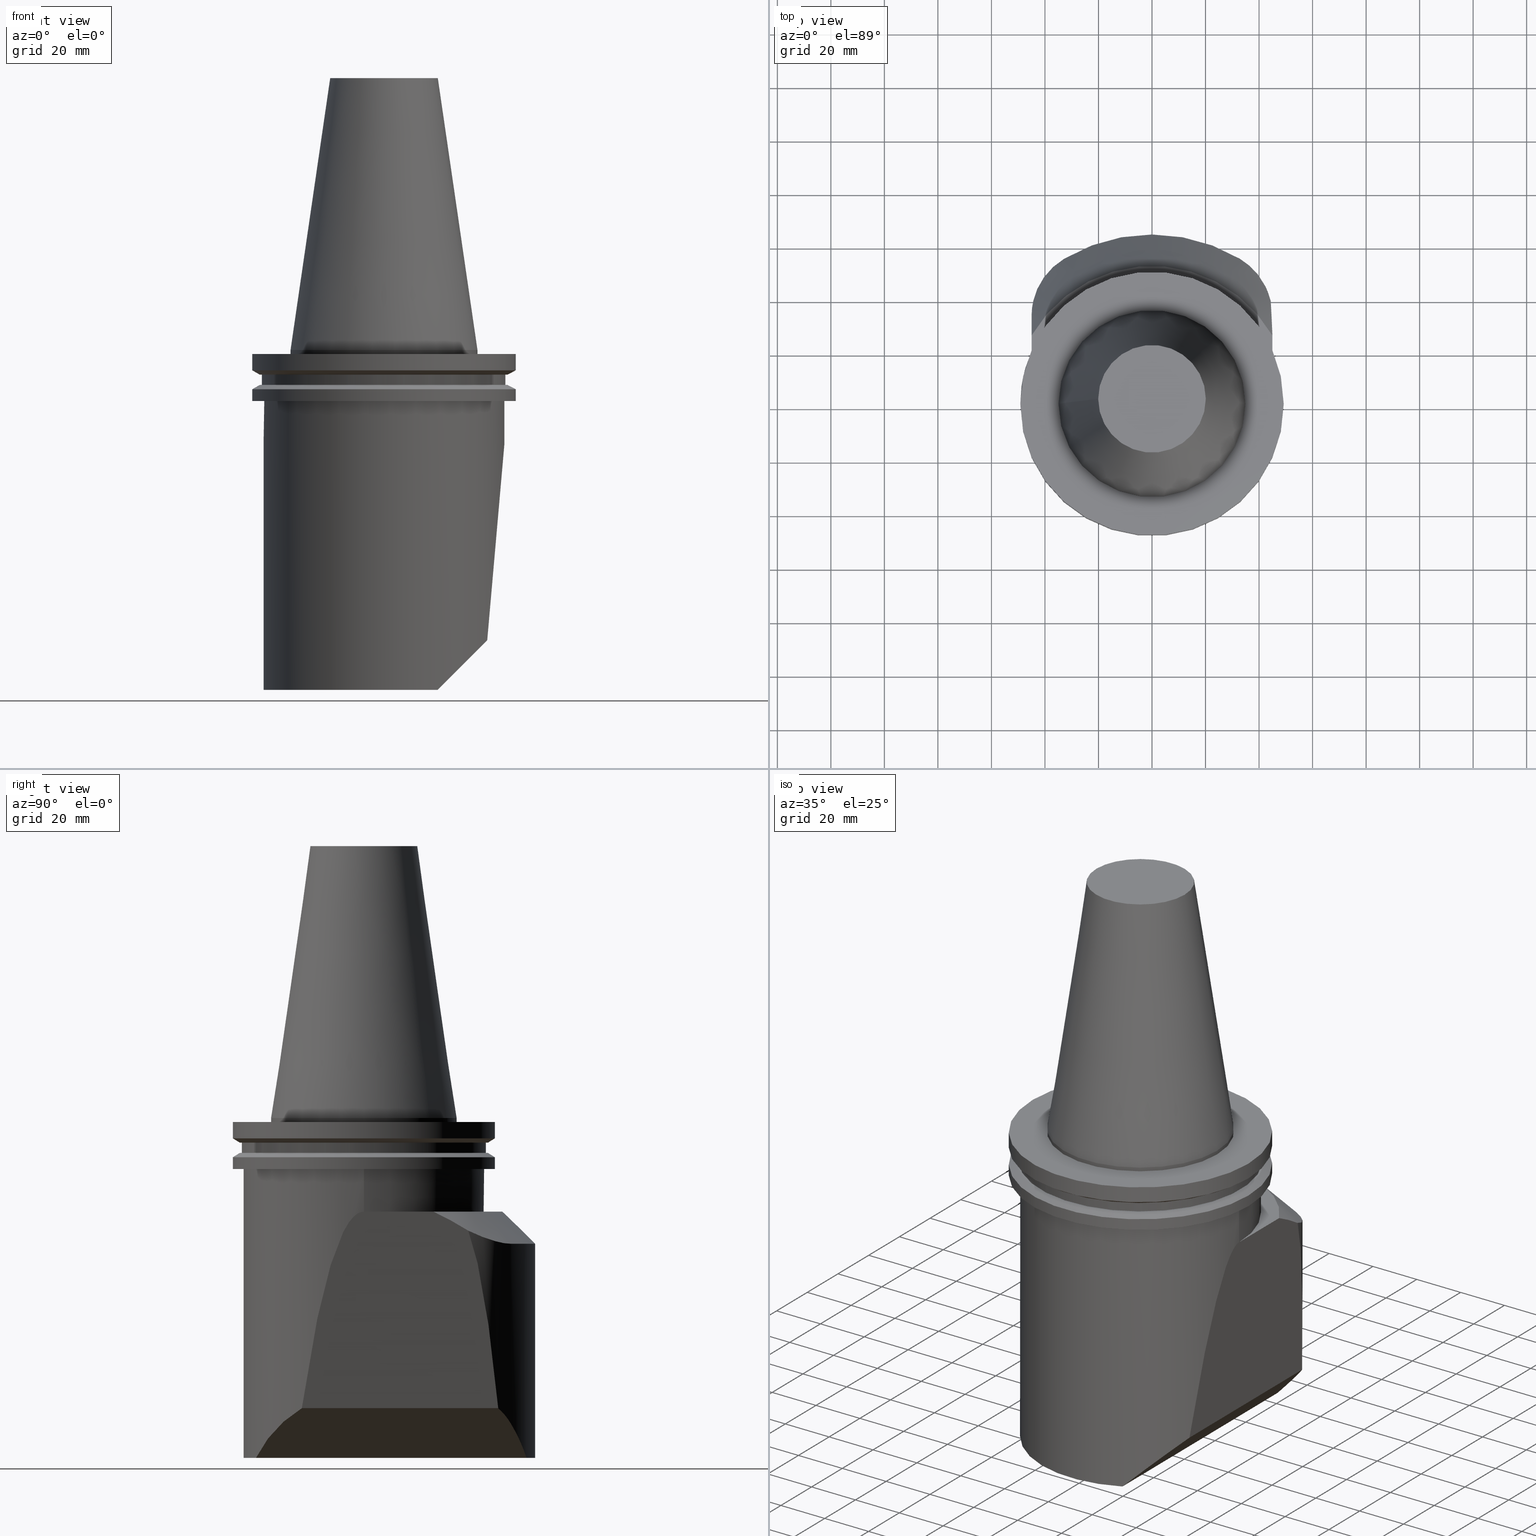
[diagram: canonical four-view strip — front | top / right | iso, engineering-drawing reading convention]
A machine part, canonical four-view strip (front | top / right | iso — engineering-drawing reading convention). The complete STEP part file that produces these views, byte-faithful:
ISO-10303-21;
HEADER;
FILE_DESCRIPTION((''),'1');
FILE_NAME('V:/01_Dxf_Field-HP\X2\FF71FF6FFF8CFF9F5916\X0\2013/BIGKAISER\X2\FF76FF80FF9BFF78FF9E63B28F095206\X0\_BKUS_201803/BCV50Y-180-BH/BCV50Y-180-BH1.250L-5.stp','2018-03-14T07:18:47',(''),(''),'Spatial Interop R21 SP3','Kubotek KeyCreator 2011 V10.0.2 (22737)',' ');
FILE_SCHEMA(('automotive_design'));
ENDSEC;
DATA;
#1=MECHANICAL_DESIGN_GEOMETRIC_PRESENTATION_REPRESENTATION(' ',(#10,#11,#12,#13,#14,#15,#16,#17,#18,#19,#20,#21,#22,#23,#24,#25,#26,#27,#28,#29,#30,#31,#32,#33,#34,#35,#36,#37,#38,#39,#40,#41,#42,#43,#44,#45,#46,#47,#48,#49,#50,#51,#52,#53,#54,#55,#56,#57,#58,#59,#60,#61,#62,#63,#64,#65,#66,#67,#68,#69,#70,#71,#72,#73,#74,#75,#76,#77,#78,#79,#80,#81,#82,#83,#84,#85),#6);
#2=PRODUCT_DEFINITION_CONTEXT('',#86,'design');
#3=APPLICATION_PROTOCOL_DEFINITION('INTERNATIONAL STANDARD','automotive_design',1994,#86);
#4=PRODUCT_CATEGORY_RELATIONSHIP('NONE','NONE',#87,#88);
#5=SHAPE_DEFINITION_REPRESENTATION(#89,#90);
#6= (GEOMETRIC_REPRESENTATION_CONTEXT(3)GLOBAL_UNCERTAINTY_ASSIGNED_CONTEXT((#93))GLOBAL_UNIT_ASSIGNED_CONTEXT((#95,#96,#97))REPRESENTATION_CONTEXT('NONE','WORKSPACE'));
#10=STYLED_ITEM('',(#99),#100);
#11=STYLED_ITEM('',(#101,#102),#103);
#12=STYLED_ITEM('',(#104),#105);
#13=STYLED_ITEM('',(#106),#107);
#14=STYLED_ITEM('',(#108),#109);
#15=STYLED_ITEM('',(#110,#111),#112);
#16=STYLED_ITEM('',(#113),#114);
#17=STYLED_ITEM('',(#115),#116);
#18=STYLED_ITEM('',(#117),#118);
#19=STYLED_ITEM('',(#119),#120);
#20=STYLED_ITEM('',(#121),#122);
#21=STYLED_ITEM('',(#123),#124);
#22=STYLED_ITEM('',(#125),#126);
#23=STYLED_ITEM('',(#127),#128);
#24=STYLED_ITEM('',(#129),#130);
#25=STYLED_ITEM('',(#131),#132);
#26=STYLED_ITEM('',(#133),#134);
#27=STYLED_ITEM('',(#135),#136);
#28=STYLED_ITEM('',(#137,#138),#139);
#29=STYLED_ITEM('',(#140,#141),#142);
#30=STYLED_ITEM('',(#143,#144),#145);
#31=STYLED_ITEM('',(#146),#147);
#32=STYLED_ITEM('',(#148),#149);
#33=STYLED_ITEM('',(#150,#151),#152);
#34=STYLED_ITEM('',(#153),#154);
#35=STYLED_ITEM('',(#155),#156);
#36=STYLED_ITEM('',(#157),#158);
#37=STYLED_ITEM('',(#159),#160);
#38=STYLED_ITEM('',(#161,#162),#163);
#39=STYLED_ITEM('',(#164),#165);
#40=STYLED_ITEM('',(#166),#167);
#41=STYLED_ITEM('',(#168,#169),#170);
#42=STYLED_ITEM('',(#171),#172);
#43=STYLED_ITEM('',(#173,#174),#175);
#44=STYLED_ITEM('',(#176,#177),#178);
#45=STYLED_ITEM('',(#179,#180),#181);
#46=STYLED_ITEM('',(#182,#183),#184);
#47=STYLED_ITEM('',(#185),#186);
#48=STYLED_ITEM('',(#187),#188);
#49=STYLED_ITEM('',(#189,#190),#191);
#50=STYLED_ITEM('',(#192),#193);
#51=STYLED_ITEM('',(#194),#195);
#52=STYLED_ITEM('',(#196,#197),#198);
#53=STYLED_ITEM('',(#199,#200),#201);
#54=STYLED_ITEM('',(#202),#203);
#55=STYLED_ITEM('',(#204,#205),#206);
#56=STYLED_ITEM('',(#207),#208);
#57=STYLED_ITEM('',(#209),#210);
#58=STYLED_ITEM('',(#211),#212);
#59=STYLED_ITEM('',(#213,#214),#215);
#60=STYLED_ITEM('',(#216),#217);
#61=STYLED_ITEM('',(#218,#219),#220);
#62=STYLED_ITEM('',(#221,#222),#223);
#63=STYLED_ITEM('',(#224),#225);
#64=STYLED_ITEM('',(#226),#227);
#65=STYLED_ITEM('',(#228,#229),#230);
#66=STYLED_ITEM('',(#231,#232),#233);
#67=STYLED_ITEM('',(#234,#235),#236);
#68=STYLED_ITEM('',(#237),#238);
#69=STYLED_ITEM('',(#239,#240),#241);
#70=STYLED_ITEM('',(#242,#243),#244);
#71=STYLED_ITEM('',(#245),#246);
#72=STYLED_ITEM('',(#247),#248);
#73=STYLED_ITEM('',(#249),#250);
#74=STYLED_ITEM('',(#251,#252),#253);
#75=STYLED_ITEM('',(#254),#255);
#76=STYLED_ITEM('',(#256),#257);
#77=STYLED_ITEM('',(#258),#259);
#78=STYLED_ITEM('',(#260),#261);
#79=STYLED_ITEM('',(#262),#263);
#80=STYLED_ITEM('',(#264),#265);
#81=STYLED_ITEM('',(#266),#267);
#82=STYLED_ITEM('',(#268),#269);
#83=STYLED_ITEM('',(#270),#271);
#84=STYLED_ITEM('',(#272,#273),#274);
#85=STYLED_ITEM('',(#275,#276),#277);
#86=APPLICATION_CONTEXT(' ');
#87=PRODUCT_CATEGORY('part','NONE');
#88=PRODUCT_RELATED_PRODUCT_CATEGORY('detail',' ',(#278));
#89=PRODUCT_DEFINITION_SHAPE('NONE','NONE',#279);
#90=ADVANCED_BREP_SHAPE_REPRESENTATION('Unnamed[1]',(#241,#280),#6);
#93=UNCERTAINTY_MEASURE_WITH_UNIT(LENGTH_MEASURE(1.0E-006),#95,'','');
#95= (CONVERSION_BASED_UNIT('MILLIMETRE',#283)LENGTH_UNIT()NAMED_UNIT(#286));
#96= (NAMED_UNIT(#288)PLANE_ANGLE_UNIT()SI_UNIT($,.RADIAN.));
#97= (NAMED_UNIT(#288)SOLID_ANGLE_UNIT()SI_UNIT($,.STERADIAN.));
#99=PRESENTATION_STYLE_ASSIGNMENT((#294));
#100=EDGE_CURVE('Unnamed[1]',#295,#295,#296,.T.);
#101=PRESENTATION_STYLE_ASSIGNMENT((#297));
#102=PRESENTATION_STYLE_ASSIGNMENT((#298));
#103=ADVANCED_FACE('Unnamed[1]',(#299),#300,.T.);
#104=PRESENTATION_STYLE_ASSIGNMENT((#301));
#105=EDGE_CURVE('Unnamed[1]',#302,#303,#304,.T.);
#106=PRESENTATION_STYLE_ASSIGNMENT((#305));
#107=EDGE_CURVE('Unnamed[1]',#306,#306,#307,.T.);
#108=PRESENTATION_STYLE_ASSIGNMENT((#308));
#109=EDGE_CURVE('Unnamed[1]',#309,#310,#311,.T.);
#110=PRESENTATION_STYLE_ASSIGNMENT((#312));
#111=PRESENTATION_STYLE_ASSIGNMENT((#313));
#112=ADVANCED_FACE('Unnamed[1]',(#314),#315,.F.);
#113=PRESENTATION_STYLE_ASSIGNMENT((#316));
#114=EDGE_CURVE('Unnamed[1]',#317,#318,#319,.T.);
#115=PRESENTATION_STYLE_ASSIGNMENT((#320));
#116=EDGE_CURVE('Unnamed[1]',#321,#322,#323,.T.);
#117=PRESENTATION_STYLE_ASSIGNMENT((#324));
#118=EDGE_CURVE('Unnamed[1]',#325,#309,#326,.T.);
#119=PRESENTATION_STYLE_ASSIGNMENT((#327));
#120=EDGE_CURVE('Unnamed[1]',#328,#328,#329,.T.);
#121=PRESENTATION_STYLE_ASSIGNMENT((#330));
#122=EDGE_CURVE('Unnamed[1]',#325,#317,#331,.T.);
#123=PRESENTATION_STYLE_ASSIGNMENT((#332));
#124=EDGE_CURVE('Unnamed[1]',#302,#333,#334,.T.);
#125=PRESENTATION_STYLE_ASSIGNMENT((#335));
#126=EDGE_CURVE('Unnamed[1]',#336,#337,#338,.T.);
#127=PRESENTATION_STYLE_ASSIGNMENT((#339));
#128=EDGE_CURVE('Unnamed[1]',#340,#340,#341,.T.);
#129=PRESENTATION_STYLE_ASSIGNMENT((#342));
#130=EDGE_CURVE('Unnamed[1]',#343,#344,#345,.T.);
#131=PRESENTATION_STYLE_ASSIGNMENT((#346));
#132=EDGE_CURVE('Unnamed[1]',#347,#322,#348,.T.);
#133=PRESENTATION_STYLE_ASSIGNMENT((#349));
#134=EDGE_CURVE('Unnamed[1]',#347,#350,#351,.T.);
#135=PRESENTATION_STYLE_ASSIGNMENT((#352));
#136=EDGE_CURVE('Unnamed[1]',#337,#353,#354,.T.);
#137=PRESENTATION_STYLE_ASSIGNMENT((#355));
#138=PRESENTATION_STYLE_ASSIGNMENT((#356));
#139=ADVANCED_FACE('Unnamed[1]',(#357),#358,.F.);
#140=PRESENTATION_STYLE_ASSIGNMENT((#359));
#141=PRESENTATION_STYLE_ASSIGNMENT((#360));
#142=ADVANCED_FACE('Unnamed[1]',(#361),#362,.T.);
#143=PRESENTATION_STYLE_ASSIGNMENT((#363));
#144=PRESENTATION_STYLE_ASSIGNMENT((#364));
#145=ADVANCED_FACE('Unnamed[1]',(#365,#366),#367,.T.);
#146=PRESENTATION_STYLE_ASSIGNMENT((#368));
#147=EDGE_CURVE('Unnamed[1]',#369,#370,#371,.T.);
#148=PRESENTATION_STYLE_ASSIGNMENT((#372));
#149=EDGE_CURVE('Unnamed[1]',#353,#373,#374,.T.);
#150=PRESENTATION_STYLE_ASSIGNMENT((#375));
#151=PRESENTATION_STYLE_ASSIGNMENT((#376));
#152=ADVANCED_FACE('Unnamed[1]',(#377),#378,.T.);
#153=PRESENTATION_STYLE_ASSIGNMENT((#379));
#154=EDGE_CURVE('Unnamed[1]',#380,#380,#381,.T.);
#155=PRESENTATION_STYLE_ASSIGNMENT((#382));
#156=EDGE_CURVE('Unnamed[1]',#318,#383,#384,.T.);
#157=PRESENTATION_STYLE_ASSIGNMENT((#385));
#158=EDGE_CURVE('Unnamed[1]',#353,#344,#386,.T.);
#159=PRESENTATION_STYLE_ASSIGNMENT((#387));
#160=EDGE_CURVE('Unnamed[1]',#388,#388,#389,.T.);
#161=PRESENTATION_STYLE_ASSIGNMENT((#390));
#162=PRESENTATION_STYLE_ASSIGNMENT((#391));
#163=ADVANCED_FACE('Unnamed[1]',(#392),#393,.F.);
#164=PRESENTATION_STYLE_ASSIGNMENT((#394));
#165=EDGE_CURVE('Unnamed[1]',#395,#370,#396,.T.);
#166=PRESENTATION_STYLE_ASSIGNMENT((#397));
#167=EDGE_CURVE('Unnamed[1]',#343,#373,#398,.T.);
#168=PRESENTATION_STYLE_ASSIGNMENT((#399));
#169=PRESENTATION_STYLE_ASSIGNMENT((#400));
#170=ADVANCED_FACE('Unnamed[1]',(#401),#402,.F.);
#171=PRESENTATION_STYLE_ASSIGNMENT((#403));
#172=EDGE_CURVE('Unnamed[1]',#321,#395,#404,.T.);
#173=PRESENTATION_STYLE_ASSIGNMENT((#405));
#174=PRESENTATION_STYLE_ASSIGNMENT((#406));
#175=ADVANCED_FACE('Unnamed[1]',(#407),#408,.F.);
#176=PRESENTATION_STYLE_ASSIGNMENT((#409));
#177=PRESENTATION_STYLE_ASSIGNMENT((#410));
#178=ADVANCED_FACE('Unnamed[1]',(#411),#412,.F.);
#179=PRESENTATION_STYLE_ASSIGNMENT((#413));
#180=PRESENTATION_STYLE_ASSIGNMENT((#414));
#181=ADVANCED_FACE('Unnamed[1]',(#415,#416),#417,.T.);
#182=PRESENTATION_STYLE_ASSIGNMENT((#418));
#183=PRESENTATION_STYLE_ASSIGNMENT((#419));
#184=ADVANCED_FACE('Unnamed[1]',(#420),#421,.T.);
#185=PRESENTATION_STYLE_ASSIGNMENT((#422));
#186=EDGE_CURVE('Unnamed[1]',#344,#369,#423,.T.);
#187=PRESENTATION_STYLE_ASSIGNMENT((#424));
#188=EDGE_CURVE('Unnamed[1]',#337,#369,#425,.T.);
#189=PRESENTATION_STYLE_ASSIGNMENT((#426));
#190=PRESENTATION_STYLE_ASSIGNMENT((#427));
#191=ADVANCED_FACE('Unnamed[1]',(#428,#429),#430,.T.);
#192=PRESENTATION_STYLE_ASSIGNMENT((#431));
#193=EDGE_CURVE('Unnamed[1]',#318,#347,#432,.T.);
#194=PRESENTATION_STYLE_ASSIGNMENT((#433));
#195=EDGE_CURVE('Unnamed[1]',#317,#434,#435,.T.);
#196=PRESENTATION_STYLE_ASSIGNMENT((#436));
#197=PRESENTATION_STYLE_ASSIGNMENT((#437));
#198=ADVANCED_FACE('Unnamed[1]',(#438,#439),#440,.T.);
#199=PRESENTATION_STYLE_ASSIGNMENT((#441));
#200=PRESENTATION_STYLE_ASSIGNMENT((#442));
#201=ADVANCED_FACE('Unnamed[1]',(#443,#444),#445,.T.);
#202=PRESENTATION_STYLE_ASSIGNMENT((#446));
#203=EDGE_CURVE('Unnamed[1]',#336,#383,#447,.T.);
#204=PRESENTATION_STYLE_ASSIGNMENT((#448));
#205=PRESENTATION_STYLE_ASSIGNMENT((#449));
#206=ADVANCED_FACE('Unnamed[1]',(#450,#451),#452,.T.);
#207=PRESENTATION_STYLE_ASSIGNMENT((#453));
#208=EDGE_CURVE('Unnamed[1]',#454,#302,#455,.T.);
#209=PRESENTATION_STYLE_ASSIGNMENT((#456));
#210=EDGE_CURVE('Unnamed[1]',#350,#454,#457,.T.);
#211=PRESENTATION_STYLE_ASSIGNMENT((#458));
#212=EDGE_CURVE('Unnamed[1]',#459,#350,#460,.T.);
#213=PRESENTATION_STYLE_ASSIGNMENT((#461));
#214=PRESENTATION_STYLE_ASSIGNMENT((#462));
#215=ADVANCED_FACE('Unnamed[1]',(#463),#464,.F.);
#216=PRESENTATION_STYLE_ASSIGNMENT((#465));
#217=EDGE_CURVE('Unnamed[1]',#466,#466,#467,.T.);
#218=PRESENTATION_STYLE_ASSIGNMENT((#468));
#219=PRESENTATION_STYLE_ASSIGNMENT((#469));
#220=ADVANCED_FACE('Unnamed[1]',(#470),#471,.T.);
#221=PRESENTATION_STYLE_ASSIGNMENT((#472));
#222=PRESENTATION_STYLE_ASSIGNMENT((#473));
#223=ADVANCED_FACE('Unnamed[1]',(#474,#475),#476,.T.);
#224=PRESENTATION_STYLE_ASSIGNMENT((#477));
#225=EDGE_CURVE('Unnamed[1]',#478,#478,#479,.T.);
#226=PRESENTATION_STYLE_ASSIGNMENT((#480));
#227=EDGE_CURVE('Unnamed[1]',#333,#309,#481,.T.);
#228=PRESENTATION_STYLE_ASSIGNMENT((#482));
#229=PRESENTATION_STYLE_ASSIGNMENT((#483));
#230=ADVANCED_FACE('Unnamed[1]',(#484),#485,.T.);
#231=PRESENTATION_STYLE_ASSIGNMENT((#486));
#232=PRESENTATION_STYLE_ASSIGNMENT((#487));
#233=ADVANCED_FACE('Unnamed[1]',(#488,#489),#490,.T.);
#234=PRESENTATION_STYLE_ASSIGNMENT((#491));
#235=PRESENTATION_STYLE_ASSIGNMENT((#492));
#236=ADVANCED_FACE('Unnamed[1]',(#493,#494),#495,.T.);
#237=PRESENTATION_STYLE_ASSIGNMENT((#496));
#238=EDGE_CURVE('Unnamed[1]',#454,#434,#497,.T.);
#239=PRESENTATION_STYLE_ASSIGNMENT((#498));
#240=PRESENTATION_STYLE_ASSIGNMENT((#499));
#241=MANIFOLD_SOLID_BREP('Unnamed[1]',#500);
#242=PRESENTATION_STYLE_ASSIGNMENT((#501));
#243=PRESENTATION_STYLE_ASSIGNMENT((#502));
#244=ADVANCED_FACE('Unnamed[1]',(#503),#504,.T.);
#245=PRESENTATION_STYLE_ASSIGNMENT((#505));
#246=EDGE_CURVE('Unnamed[1]',#506,#506,#507,.T.);
#247=PRESENTATION_STYLE_ASSIGNMENT((#508));
#248=EDGE_CURVE('Unnamed[1]',#383,#325,#509,.T.);
#249=PRESENTATION_STYLE_ASSIGNMENT((#510));
#250=EDGE_CURVE('Unnamed[1]',#333,#434,#511,.T.);
#251=PRESENTATION_STYLE_ASSIGNMENT((#512));
#252=PRESENTATION_STYLE_ASSIGNMENT((#513));
#253=ADVANCED_FACE('Unnamed[1]',(#514,#515),#516,.T.);
#254=PRESENTATION_STYLE_ASSIGNMENT((#517));
#255=EDGE_CURVE('Unnamed[1]',#310,#395,#518,.T.);
#256=PRESENTATION_STYLE_ASSIGNMENT((#519));
#257=EDGE_CURVE('Unnamed[1]',#373,#336,#520,.T.);
#258=PRESENTATION_STYLE_ASSIGNMENT((#521));
#259=EDGE_CURVE('Unnamed[1]',#522,#522,#523,.T.);
#260=PRESENTATION_STYLE_ASSIGNMENT((#524));
#261=EDGE_CURVE('Unnamed[1]',#303,#459,#525,.T.);
#262=PRESENTATION_STYLE_ASSIGNMENT((#526));
#263=EDGE_CURVE('Unnamed[1]',#310,#303,#527,.T.);
#264=PRESENTATION_STYLE_ASSIGNMENT((#528));
#265=EDGE_CURVE('Unnamed[1]',#370,#343,#529,.T.);
#266=PRESENTATION_STYLE_ASSIGNMENT((#530));
#267=EDGE_CURVE('Unnamed[1]',#531,#531,#532,.T.);
#268=PRESENTATION_STYLE_ASSIGNMENT((#533));
#269=EDGE_CURVE('Unnamed[1]',#534,#534,#535,.T.);
#270=PRESENTATION_STYLE_ASSIGNMENT((#536));
#271=EDGE_CURVE('Unnamed[1]',#322,#459,#537,.T.);
#272=PRESENTATION_STYLE_ASSIGNMENT((#538));
#273=PRESENTATION_STYLE_ASSIGNMENT((#539));
#274=ADVANCED_FACE('Unnamed[1]',(#540,#541),#542,.T.);
#275=PRESENTATION_STYLE_ASSIGNMENT((#543));
#276=PRESENTATION_STYLE_ASSIGNMENT((#544));
#277=ADVANCED_FACE('Unnamed[1]',(#545,#546),#547,.T.);
#278=PRODUCT('Unnamed[1]','Unnamed[1]','PART-Unnamed[1]-DESC',(#548));
#279=PRODUCT_DEFINITION('NONE','NONE',#549,#2);
#280=AXIS2_PLACEMENT_3D('',#550,#551,#552);
#283=LENGTH_MEASURE_WITH_UNIT(LENGTH_MEASURE(1.0),#553);
#286=DIMENSIONAL_EXPONENTS(1.0,0.0,0.0,0.0,0.0,0.0,0.0);
#288=DIMENSIONAL_EXPONENTS(0.0,0.0,0.0,0.0,0.0,0.0,0.0);
#294=CURVE_STYLE('',#554,POSITIVE_LENGTH_MEASURE(1000.0),#555);
#295=VERTEX_POINT('',#556);
#296=CIRCLE('',#557,49.2125);
#297=SURFACE_STYLE_USAGE(.BOTH.,#558);
#298=CURVE_STYLE('',#559,POSITIVE_LENGTH_MEASURE(1000.0),#560);
#299=FACE_OUTER_BOUND('',#561,.T.);
#300=CYLINDRICAL_SURFACE('',#562,25.0);
#301=CURVE_STYLE('',#563,POSITIVE_LENGTH_MEASURE(1000.0),#564);
#302=VERTEX_POINT('',#565);
#303=VERTEX_POINT('',#566);
#304=LINE('',#567,#568);
#305=CURVE_STYLE('',#569,POSITIVE_LENGTH_MEASURE(1000.0),#570);
#306=VERTEX_POINT('',#571);
#307=CIRCLE('',#572,46.43053755);
#308=CURVE_STYLE('',#573,POSITIVE_LENGTH_MEASURE(1000.0),#574);
#309=VERTEX_POINT('',#575);
#310=VERTEX_POINT('',#576);
#311=LINE('',#577,#578);
#312=SURFACE_STYLE_USAGE(.BOTH.,#579);
#313=CURVE_STYLE('',#580,POSITIVE_LENGTH_MEASURE(1000.0),#581);
#314=FACE_OUTER_BOUND('',#582,.T.);
#315=PLANE('',#583);
#316=CURVE_STYLE('',#584,POSITIVE_LENGTH_MEASURE(1000.0),#585);
#317=VERTEX_POINT('',#586);
#318=VERTEX_POINT('',#587);
#319=B_SPLINE_CURVE_WITH_KNOTS('',3,(#588,#589,#590,#591,#592,#593,#594,#595,#596,#597,#598,#599,#600,#601,#602,#603,#604,#605,#606,#607,#608,#609),.UNSPECIFIED.,.F.,.F.,(4,2,2,2,2,2,2,2,2,2,4),(32.8394194779171,34.7964011372256,36.7533827965341,38.7103644558426,42.6243277744596,46.5382910930767,50.4522544116937,52.8448228945384,55.2373913773831,60.0225283430724,64.8076653087618),.UNSPECIFIED.);
#320=CURVE_STYLE('',#610,POSITIVE_LENGTH_MEASURE(1000.0),#611);
#321=VERTEX_POINT('',#612);
#322=VERTEX_POINT('',#613);
#323=CIRCLE('',#614,45.0);
#324=CURVE_STYLE('',#615,POSITIVE_LENGTH_MEASURE(1000.0),#616);
#325=VERTEX_POINT('',#617);
#326=CIRCLE('',#618,63.9999999999996);
#327=CURVE_STYLE('',#619,POSITIVE_LENGTH_MEASURE(1000.0),#620);
#328=VERTEX_POINT('',#621);
#329=CIRCLE('',#622,49.2125);
#330=CURVE_STYLE('',#623,POSITIVE_LENGTH_MEASURE(1000.0),#624);
#331=LINE('',#625,#626);
#332=CURVE_STYLE('',#627,POSITIVE_LENGTH_MEASURE(1000.0),#628);
#333=VERTEX_POINT('',#629);
#334=ELLIPSE('',#630,35.3553390593273,25.0);
#335=CURVE_STYLE('',#631,POSITIVE_LENGTH_MEASURE(1000.0),#632);
#336=VERTEX_POINT('',#633);
#337=VERTEX_POINT('',#634);
#338=LINE('',#635,#636);
#339=CURVE_STYLE('',#637,POSITIVE_LENGTH_MEASURE(1000.0),#638);
#340=VERTEX_POINT('',#639);
#341=CIRCLE('',#640,20.1083333297217);
#342=CURVE_STYLE('',#641,POSITIVE_LENGTH_MEASURE(1000.0),#642);
#343=VERTEX_POINT('',#643);
#344=VERTEX_POINT('',#644);
#345=LINE('',#645,#646);
#346=CURVE_STYLE('',#647,POSITIVE_LENGTH_MEASURE(1000.0),#648);
#347=VERTEX_POINT('',#649);
#348=LINE('',#650,#651);
#349=CURVE_STYLE('',#652,POSITIVE_LENGTH_MEASURE(1000.0),#653);
#350=VERTEX_POINT('',#654);
#351=CIRCLE('',#655,51.9999999999999);
#352=CURVE_STYLE('',#656,POSITIVE_LENGTH_MEASURE(1000.0),#657);
#353=VERTEX_POINT('',#658);
#354=LINE('',#659,#660);
#355=SURFACE_STYLE_USAGE(.BOTH.,#661);
#356=CURVE_STYLE('',#662,POSITIVE_LENGTH_MEASURE(1000.0),#663);
#357=FACE_OUTER_BOUND('',#664,.T.);
#358=PLANE('',#665);
#359=SURFACE_STYLE_USAGE(.BOTH.,#666);
#360=CURVE_STYLE('',#667,POSITIVE_LENGTH_MEASURE(1000.0),#668);
#361=FACE_OUTER_BOUND('',#669,.T.);
#362=CYLINDRICAL_SURFACE('',#670,25.0);
#363=SURFACE_STYLE_USAGE(.BOTH.,#671);
#364=CURVE_STYLE('',#672,POSITIVE_LENGTH_MEASURE(1000.0),#673);
#365=FACE_BOUND('',#674,.T.);
#366=FACE_BOUND('',#675,.T.);
#367=CONICAL_SURFACE('',#676,47.821518775,1.04719755103024);
#368=CURVE_STYLE('',#677,POSITIVE_LENGTH_MEASURE(1000.0),#678);
#369=VERTEX_POINT('',#679);
#370=VERTEX_POINT('',#680);
#371=LINE('',#681,#682);
#372=CURVE_STYLE('',#683,POSITIVE_LENGTH_MEASURE(1000.0),#684);
#373=VERTEX_POINT('',#685);
#374=LINE('',#686,#687);
#375=SURFACE_STYLE_USAGE(.BOTH.,#688);
#376=CURVE_STYLE('',#689,POSITIVE_LENGTH_MEASURE(1000.0),#690);
#377=FACE_OUTER_BOUND('',#691,.T.);
#378=CYLINDRICAL_SURFACE('',#692,63.9999999999996);
#379=CURVE_STYLE('',#693,POSITIVE_LENGTH_MEASURE(1000.0),#694);
#380=VERTEX_POINT('',#695);
#381=CIRCLE('',#696,45.645);
#382=CURVE_STYLE('',#697,POSITIVE_LENGTH_MEASURE(1000.0),#698);
#383=VERTEX_POINT('',#699);
#384=LINE('',#700,#701);
#385=CURVE_STYLE('',#702,POSITIVE_LENGTH_MEASURE(1000.0),#703);
#386=LINE('',#704,#705);
#387=CURVE_STYLE('',#706,POSITIVE_LENGTH_MEASURE(1000.0),#707);
#388=VERTEX_POINT('',#708);
#389=CIRCLE('',#709,49.2125);
#390=SURFACE_STYLE_USAGE(.BOTH.,#710);
#391=CURVE_STYLE('',#711,POSITIVE_LENGTH_MEASURE(1000.0),#712);
#392=FACE_OUTER_BOUND('',#713,.T.);
#393=PLANE('',#714);
#394=CURVE_STYLE('',#715,POSITIVE_LENGTH_MEASURE(1000.0),#716);
#395=VERTEX_POINT('',#717);
#396=LINE('',#718,#719);
#397=CURVE_STYLE('',#720,POSITIVE_LENGTH_MEASURE(1000.0),#721);
#398=LINE('',#722,#723);
#399=SURFACE_STYLE_USAGE(.BOTH.,#724);
#400=CURVE_STYLE('',#725,POSITIVE_LENGTH_MEASURE(1000.0),#726);
#401=FACE_OUTER_BOUND('',#727,.T.);
#402=PLANE('',#728);
#403=CURVE_STYLE('',#729,POSITIVE_LENGTH_MEASURE(1000.0),#730);
#404=LINE('',#731,#732);
#405=SURFACE_STYLE_USAGE(.BOTH.,#733);
#406=CURVE_STYLE('',#734,POSITIVE_LENGTH_MEASURE(1000.0),#735);
#407=FACE_OUTER_BOUND('',#736,.T.);
#408=PLANE('',#737);
#409=SURFACE_STYLE_USAGE(.BOTH.,#738);
#410=CURVE_STYLE('',#739,POSITIVE_LENGTH_MEASURE(1000.0),#740);
#411=FACE_OUTER_BOUND('',#741,.T.);
#412=PLANE('',#742);
#413=SURFACE_STYLE_USAGE(.BOTH.,#743);
#414=CURVE_STYLE('',#744,POSITIVE_LENGTH_MEASURE(1000.0),#745);
#415=FACE_BOUND('',#746,.T.);
#416=FACE_BOUND('',#747,.T.);
#417=CYLINDRICAL_SURFACE('',#748,45.0);
#418=SURFACE_STYLE_USAGE(.BOTH.,#749);
#419=CURVE_STYLE('',#750,POSITIVE_LENGTH_MEASURE(1000.0),#751);
#420=FACE_OUTER_BOUND('',#752,.T.);
#421=CONICAL_SURFACE('',#753,57.9999999999998,0.785398163397448);
#422=CURVE_STYLE('',#754,POSITIVE_LENGTH_MEASURE(1000.0),#755);
#423=LINE('',#756,#757);
#424=CURVE_STYLE('',#758,POSITIVE_LENGTH_MEASURE(1000.0),#759);
#425=LINE('',#760,#761);
#426=SURFACE_STYLE_USAGE(.BOTH.,#762);
#427=CURVE_STYLE('',#763,POSITIVE_LENGTH_MEASURE(1000.0),#764);
#428=FACE_BOUND('',#765,.T.);
#429=FACE_BOUND('',#766,.T.);
#430=CYLINDRICAL_SURFACE('',#767,49.2125);
#431=CURVE_STYLE('',#768,POSITIVE_LENGTH_MEASURE(1000.0),#769);
#432=(B_SPLINE_CURVE(2,(#771,#772,#773),.UNSPECIFIED.,.F.,.F.)B_SPLINE_CURVE_WITH_KNOTS((3,3),(0.0,22.8709444091253),.UNSPECIFIED.)RATIONAL_B_SPLINE_CURVE((1.0,1.01436146243064,1.0))BOUNDED_CURVE()REPRESENTATION_ITEM('')GEOMETRIC_REPRESENTATION_ITEM()CURVE());
#433=CURVE_STYLE('',#780,POSITIVE_LENGTH_MEASURE(1000.0),#781);
#434=VERTEX_POINT('',#782);
#435=CIRCLE('',#783,63.9999999999996);
#436=SURFACE_STYLE_USAGE(.BOTH.,#784);
#437=CURVE_STYLE('',#785,POSITIVE_LENGTH_MEASURE(1000.0),#786);
#438=FACE_BOUND('',#787,.T.);
#439=FACE_OUTER_BOUND('',#788,.T.);
#440=PLANE('',#789);
#441=SURFACE_STYLE_USAGE(.BOTH.,#790);
#442=CURVE_STYLE('',#791,POSITIVE_LENGTH_MEASURE(1000.0),#792);
#443=FACE_BOUND('',#793,.T.);
#444=FACE_BOUND('',#794,.T.);
#445=CYLINDRICAL_SURFACE('',#795,49.2125);
#446=CURVE_STYLE('',#796,POSITIVE_LENGTH_MEASURE(1000.0),#797);
#447=LINE('',#798,#799);
#448=SURFACE_STYLE_USAGE(.BOTH.,#800);
#449=CURVE_STYLE('',#801,POSITIVE_LENGTH_MEASURE(1000.0),#802);
#450=FACE_OUTER_BOUND('',#803,.T.);
#451=FACE_BOUND('',#804,.T.);
#452=PLANE('',#805);
#453=CURVE_STYLE('',#806,POSITIVE_LENGTH_MEASURE(1000.0),#807);
#454=VERTEX_POINT('',#808);
#455=ELLIPSE('',#809,286.84283114175,25.0);
#456=CURVE_STYLE('',#810,POSITIVE_LENGTH_MEASURE(1000.0),#811);
#457=(B_SPLINE_CURVE(2,(#813,#814,#815),.UNSPECIFIED.,.F.,.F.)B_SPLINE_CURVE_WITH_KNOTS((3,3),(0.0,23.7680413790468),.UNSPECIFIED.)RATIONAL_B_SPLINE_CURVE((1.0,1.01384614119179,1.0))BOUNDED_CURVE()REPRESENTATION_ITEM('')GEOMETRIC_REPRESENTATION_ITEM()CURVE());
#458=CURVE_STYLE('',#822,POSITIVE_LENGTH_MEASURE(1000.0),#823);
#459=VERTEX_POINT('',#824);
#460=LINE('',#825,#826);
#461=SURFACE_STYLE_USAGE(.BOTH.,#827);
#462=CURVE_STYLE('',#828,POSITIVE_LENGTH_MEASURE(1000.0),#829);
#463=FACE_OUTER_BOUND('',#830,.T.);
#464=PLANE('',#831);
#465=CURVE_STYLE('',#832,POSITIVE_LENGTH_MEASURE(1000.0),#833);
#466=VERTEX_POINT('',#834);
#467=CIRCLE('',#835,45.0);
#468=SURFACE_STYLE_USAGE(.BOTH.,#836);
#469=CURVE_STYLE('',#837,POSITIVE_LENGTH_MEASURE(1000.0),#838);
#470=FACE_OUTER_BOUND('',#839,.T.);
#471=PLANE('',#840);
#472=SURFACE_STYLE_USAGE(.BOTH.,#841);
#473=CURVE_STYLE('',#842,POSITIVE_LENGTH_MEASURE(1000.0),#843);
#474=FACE_BOUND('',#844,.T.);
#475=FACE_BOUND('',#845,.T.);
#476=CONICAL_SURFACE('',#846,47.821518775,1.04719755103024);
#477=CURVE_STYLE('',#847,POSITIVE_LENGTH_MEASURE(1000.0),#848);
#478=VERTEX_POINT('',#849);
#479=CIRCLE('',#850,34.925);
#480=CURVE_STYLE('',#851,POSITIVE_LENGTH_MEASURE(1000.0),#852);
#481=ELLIPSE('',#853,90.5096679918774,63.9999999999996);
#482=SURFACE_STYLE_USAGE(.BOTH.,#854);
#483=CURVE_STYLE('',#855,POSITIVE_LENGTH_MEASURE(1000.0),#856);
#484=FACE_OUTER_BOUND('',#857,.T.);
#485=PLANE('',#858);
#486=SURFACE_STYLE_USAGE(.BOTH.,#859);
#487=CURVE_STYLE('',#860,POSITIVE_LENGTH_MEASURE(1000.0),#861);
#488=FACE_BOUND('',#862,.T.);
#489=FACE_BOUND('',#863,.T.);
#490=CONICAL_SURFACE('',#864,27.5166666648609,0.144812498273746);
#491=SURFACE_STYLE_USAGE(.BOTH.,#865);
#492=CURVE_STYLE('',#866,POSITIVE_LENGTH_MEASURE(1000.0),#867);
#493=FACE_OUTER_BOUND('',#868,.T.);
#494=FACE_BOUND('',#869,.T.);
#495=PLANE('',#870);
#496=CURVE_STYLE('',#871,POSITIVE_LENGTH_MEASURE(1000.0),#872);
#497=B_SPLINE_CURVE_WITH_KNOTS('',3,(#873,#874,#875,#876,#877,#878,#879,#880,#881,#882,#883,#884,#885,#886,#887,#888,#889,#890,#891,#892,#893,#894),.UNSPECIFIED.,.F.,.F.,(4,2,2,2,2,2,2,2,2,2,4),(4.7851369656893,9.5702739313786,14.3554108970679,16.7479793799126,19.1405478627572,23.0545111813742,26.9684744999912,30.8824378186082,32.8394194779167,34.7964011372251,36.7533827965336),.UNSPECIFIED.);
#498=SURFACE_STYLE_USAGE(.BOTH.,#895);
#499=CURVE_STYLE('',#896,POSITIVE_LENGTH_MEASURE(1000.0),#897);
#500=CLOSED_SHELL('',(#215,#178,#170,#139,#112,#163,#175,#184,#103,#152,#142,#244,#230,#233,#274,#236,#201,#223,#198,#253,#277,#145,#191,#206,#181,#220));
#501=SURFACE_STYLE_USAGE(.BOTH.,#898);
#502=CURVE_STYLE('',#899,POSITIVE_LENGTH_MEASURE(1000.0),#900);
#503=FACE_OUTER_BOUND('',#901,.T.);
#504=PLANE('',#902);
#505=CURVE_STYLE('',#903,POSITIVE_LENGTH_MEASURE(1000.0),#904);
#506=VERTEX_POINT('',#905);
#507=CIRCLE('',#906,46.43053755);
#508=CURVE_STYLE('',#907,POSITIVE_LENGTH_MEASURE(1000.0),#908);
#509=CIRCLE('',#909,25.0);
#510=CURVE_STYLE('',#910,POSITIVE_LENGTH_MEASURE(1000.0),#911);
#511=LINE('',#912,#913);
#512=SURFACE_STYLE_USAGE(.BOTH.,#914);
#513=CURVE_STYLE('',#915,POSITIVE_LENGTH_MEASURE(1000.0),#916);
#514=FACE_BOUND('',#917,.T.);
#515=FACE_BOUND('',#918,.T.);
#516=CYLINDRICAL_SURFACE('',#919,45.645);
#517=CURVE_STYLE('',#920,POSITIVE_LENGTH_MEASURE(1000.0),#921);
#518=CIRCLE('',#922,45.0);
#519=CURVE_STYLE('',#923,POSITIVE_LENGTH_MEASURE(1000.0),#924);
#520=LINE('',#925,#926);
#521=CURVE_STYLE('',#927,POSITIVE_LENGTH_MEASURE(1000.0),#928);
#522=VERTEX_POINT('',#929);
#523=CIRCLE('',#930,45.645);
#524=CURVE_STYLE('',#931,POSITIVE_LENGTH_MEASURE(1000.0),#932);
#525=ELLIPSE('',#933,516.317096055151,45.0);
#526=CURVE_STYLE('',#934,POSITIVE_LENGTH_MEASURE(1000.0),#935);
#527=ELLIPSE('',#936,63.6396103067892,45.0);
#528=CURVE_STYLE('',#937,POSITIVE_LENGTH_MEASURE(1000.0),#938);
#529=LINE('',#939,#940);
#530=CURVE_STYLE('',#941,POSITIVE_LENGTH_MEASURE(1000.0),#942);
#531=VERTEX_POINT('',#943);
#532=CIRCLE('',#944,34.925);
#533=CURVE_STYLE('',#945,POSITIVE_LENGTH_MEASURE(1000.0),#946);
#534=VERTEX_POINT('',#947);
#535=CIRCLE('',#948,49.2125);
#536=CURVE_STYLE('',#949,POSITIVE_LENGTH_MEASURE(1000.0),#950);
#537=CIRCLE('',#951,45.0);
#538=SURFACE_STYLE_USAGE(.BOTH.,#952);
#539=CURVE_STYLE('',#953,POSITIVE_LENGTH_MEASURE(1000.0),#954);
#540=FACE_BOUND('',#955,.T.);
#541=FACE_BOUND('',#956,.T.);
#542=CYLINDRICAL_SURFACE('',#957,34.925);
#543=SURFACE_STYLE_USAGE(.BOTH.,#958);
#544=CURVE_STYLE('',#959,POSITIVE_LENGTH_MEASURE(1000.0),#960);
#545=FACE_OUTER_BOUND('',#961,.T.);
#546=FACE_BOUND('',#962,.T.);
#547=PLANE('',#963);
#548=PRODUCT_CONTEXT('',#86,'mechanical');
#549=PRODUCT_DEFINITION_FORMATION_WITH_SPECIFIED_SOURCE(' ','NONE',#278,.NOT_KNOWN.);
#550=CARTESIAN_POINT('',(0.0,0.0,0.0));
#551=DIRECTION('',(0.0,0.0,1.0));
#552=DIRECTION('',(1.0,0.0,0.0));
#553= (NAMED_UNIT(#286)LENGTH_UNIT()SI_UNIT(.MILLI.,.METRE.));
#554=DRAUGHTING_PRE_DEFINED_CURVE_FONT('continuous');
#555=COLOUR_RGB('',0.0,1.0,0.0);
#556=CARTESIAN_POINT('',(-49.2125,8.57520141253695E-015,-7.59383323000001));
#557=AXIS2_PLACEMENT_3D('',#965,#966,#967);
#558=SURFACE_SIDE_STYLE('',(#968));
#559=DRAUGHTING_PRE_DEFINED_CURVE_FONT('continuous');
#560=COLOUR_RGB('',0.0,1.0,0.0);
#561=EDGE_LOOP('',(#969,#970,#971,#972));
#562=AXIS2_PLACEMENT_3D('',#973,#974,#975);
#563=DRAUGHTING_PRE_DEFINED_CURVE_FONT('continuous');
#564=COLOUR_RGB('',0.0,1.0,0.0);
#565=CARTESIAN_POINT('',(38.5762546480943,50.2122305677131,-108.423745351906));
#566=CARTESIAN_POINT('',(38.5762546480943,-23.1705109422599,-108.423745351906));
#567=CARTESIAN_POINT('',(38.5762546480943,-1.37253826515212E-014,-108.423745351906));
#568=VECTOR('',#976,1.0);
#569=DRAUGHTING_PRE_DEFINED_CURVE_FONT('continuous');
#570=COLOUR_RGB('',0.0,1.0,0.0);
#571=CARTESIAN_POINT('',(-46.43053755,7.96581385138699E-015,-9.20000000000001));
#572=AXIS2_PLACEMENT_3D('',#977,#978,#979);
#573=DRAUGHTING_PRE_DEFINED_CURVE_FONT('continuous');
#574=COLOUR_RGB('',0.0,1.0,0.0);
#575=CARTESIAN_POINT('',(19.9999999999995,60.7947366142824,-127.0));
#576=CARTESIAN_POINT('',(19.9999999999997,-40.3112887414924,-127.0));
#577=CARTESIAN_POINT('',(19.9999999999999,-1.14504475720277E-014,-127.0));
#578=VECTOR('',#980,1.0);
#579=SURFACE_SIDE_STYLE('',(#981));
#580=DRAUGHTING_PRE_DEFINED_CURVE_FONT('continuous');
#581=COLOUR_RGB('',0.0,1.0,0.0);
#582=EDGE_LOOP('',(#982,#983,#984,#985,#986,#987,#988,#989,#990,#991));
#583=AXIS2_PLACEMENT_3D('',#992,#993,#994);
#584=DRAUGHTING_PRE_DEFINED_CURVE_FONT('continuous');
#585=COLOUR_RGB('',0.0,1.0,0.0);
#586=CARTESIAN_POINT('',(-32.8205128205145,54.9437342942625,-47.0000000000007));
#587=CARTESIAN_POINT('',(-45.0000000000007,33.4813380855666,-39.0892146495215));
#588=CARTESIAN_POINT('',(-31.0759928747108,55.893887736139,-46.9518883177753));
#589=CARTESIAN_POINT('',(-31.6775533839552,55.5966042936937,-46.9843777844007));
#590=CARTESIAN_POINT('',(-32.2604926105774,55.2782610736319,-47.0000000000007));
#591=CARTESIAN_POINT('',(-33.3805330304503,54.6092075148939,-47.0000000000007));
#592=CARTESIAN_POINT('',(-33.9371677849014,54.2468288485359,-46.9843777844007));
#593=CARTESIAN_POINT('',(-35.0310047670385,53.4693131752229,-46.9193988511498));
#594=CARTESIAN_POINT('',(-35.5682079417749,53.0541773787034,-46.8700435922375));
#595=CARTESIAN_POINT('',(-37.1341468154317,51.7373387144859,-46.6698856350647));
#596=CARTESIAN_POINT('',(-38.1164426533126,50.763168999609,-46.4662737210916));
#597=CARTESIAN_POINT('',(-39.8920686133915,48.6857053376522,-45.9275807062338));
#598=CARTESIAN_POINT('',(-40.6868228858491,47.5809060631316,-45.592073170251));
#599=CARTESIAN_POINT('',(-42.05659636646,45.3240157822191,-44.8177252085511));
#600=CARTESIAN_POINT('',(-42.6317207682664,44.172005399676,-44.3788358865793));
#601=CARTESIAN_POINT('',(-43.3829828617962,42.357771964723,-43.6282950330194));
#602=CARTESIAN_POINT('',(-43.6394601463752,41.6510204096534,-43.3220426404158));
#603=CARTESIAN_POINT('',(-44.0885797422425,40.2124681014381,-42.6689559132447));
#604=CARTESIAN_POINT('',(-44.2812305284091,39.4806703748303,-42.3221207402296));
#605=CARTESIAN_POINT('',(-44.7579416504319,37.2661631987074,-41.2262265239291));
#606=CARTESIAN_POINT('',(-44.9394671376526,35.7642203919041,-40.4211063875234));
#607=CARTESIAN_POINT('',(-45.0346532081921,32.8069630561007,-38.7042644691875));
#608=CARTESIAN_POINT('',(-44.9485642712005,31.3500708502179,-37.7914887530078));
#609=CARTESIAN_POINT('',(-44.7506740801499,29.9593879754386,-36.8533913369499));
#610=DRAUGHTING_PRE_DEFINED_CURVE_FONT('continuous');
#611=COLOUR_RGB('',0.0,1.0,0.0);
#612=CARTESIAN_POINT('',(-44.9999999999979,-1.38230826644727E-005,-35.0));
#613=CARTESIAN_POINT('',(-45.0,6.12323399573676E-015,-35.0));
#614=AXIS2_PLACEMENT_3D('',#995,#996,#997);
#615=DRAUGHTING_PRE_DEFINED_CURVE_FONT('continuous');
#616=COLOUR_RGB('',0.0,1.0,0.0);
#617=CARTESIAN_POINT('',(-32.8205128205145,54.9437342942625,-127.0));
#618=AXIS2_PLACEMENT_3D('',#998,#999,#1000);
#619=DRAUGHTING_PRE_DEFINED_CURVE_FONT('continuous');
#620=COLOUR_RGB('',0.0,1.0,0.0);
#621=CARTESIAN_POINT('',(-49.2125,8.14337052772293E-015,-14.64616677));
#622=AXIS2_PLACEMENT_3D('',#1001,#1002,#1003);
#623=DRAUGHTING_PRE_DEFINED_CURVE_FONT('continuous');
#624=COLOUR_RGB('',0.0,1.0,0.0);
#625=CARTESIAN_POINT('',(-32.8205128205141,54.9437342942634,-279.999999999999));
#626=VECTOR('',#1004,1.0);
#627=DRAUGHTING_PRE_DEFINED_CURVE_FONT('continuous');
#628=COLOUR_RGB('',0.0,1.0,0.0);
#629=CARTESIAN_POINT('',(32.8205128205117,54.9437342942642,-114.179487179488));
#630=AXIS2_PLACEMENT_3D('',#1005,#1006,#1007);
#631=DRAUGHTING_PRE_DEFINED_CURVE_FONT('continuous');
#632=COLOUR_RGB('',0.0,1.0,0.0);
#633=CARTESIAN_POINT('',(-45.0000000000007,31.7499999999995,-127.0));
#634=CARTESIAN_POINT('',(-45.0000000000007,31.7499999999995,-42.0000000000002));
#635=CARTESIAN_POINT('',(-45.0000000000007,31.7499999999995,-279.999999999999));
#636=VECTOR('',#1008,1.0);
#637=DRAUGHTING_PRE_DEFINED_CURVE_FONT('continuous');
#638=COLOUR_RGB('',0.0,1.0,0.0);
#639=CARTESIAN_POINT('',(-20.1083333297217,9.91504664693332E-015,101.6));
#640=AXIS2_PLACEMENT_3D('',#1009,#1010,#1011);
#641=DRAUGHTING_PRE_DEFINED_CURVE_FONT('continuous');
#642=COLOUR_RGB('',0.0,1.0,0.0);
#643=CARTESIAN_POINT('',(-13.2500000000003,-8.01150385712592E-013,-127.0));
#644=CARTESIAN_POINT('',(-13.2500000000003,-7.95945636816216E-013,-42.0000000000002));
#645=CARTESIAN_POINT('',(-13.2500000000003,-8.1051893372607E-013,-279.999999999999));
#646=VECTOR('',#1012,1.0);
#647=DRAUGHTING_PRE_DEFINED_CURVE_FONT('continuous');
#648=COLOUR_RGB('',0.0,1.0,0.0);
#649=CARTESIAN_POINT('',(-45.0000000000007,26.0576284415893,-35.0));
#650=CARTESIAN_POINT('',(-45.0000000000007,8.37033106562099,-35.0));
#651=VECTOR('',#1013,1.0);
#652=DRAUGHTING_PRE_DEFINED_CURVE_FONT('continuous');
#653=COLOUR_RGB('',0.0,1.0,0.0);
#654=CARTESIAN_POINT('',(44.9999999999993,26.0576284415919,-35.0));
#655=AXIS2_PLACEMENT_3D('',#1014,#1015,#1016);
#656=DRAUGHTING_PRE_DEFINED_CURVE_FONT('continuous');
#657=COLOUR_RGB('',0.0,1.0,0.0);
#658=CARTESIAN_POINT('',(-13.2500000000003,31.7499999999994,-42.0000000000002));
#659=CARTESIAN_POINT('',(-13.2500000000003,31.7499999999994,-42.0000000000002));
#660=VECTOR('',#1017,1.0);
#661=SURFACE_SIDE_STYLE('',(#1018));
#662=DRAUGHTING_PRE_DEFINED_CURVE_FONT('continuous');
#663=COLOUR_RGB('',0.0,1.0,0.0);
#664=EDGE_LOOP('',(#1019,#1020,#1021,#1022));
#665=AXIS2_PLACEMENT_3D('',#1023,#1024,#1025);
#666=SURFACE_SIDE_STYLE('',(#1026));
#667=DRAUGHTING_PRE_DEFINED_CURVE_FONT('continuous');
#668=COLOUR_RGB('',0.0,1.0,0.0);
#669=EDGE_LOOP('',(#1027,#1028,#1029,#1030));
#670=AXIS2_PLACEMENT_3D('',#1031,#1032,#1033);
#671=SURFACE_SIDE_STYLE('',(#1034));
#672=DRAUGHTING_PRE_DEFINED_CURVE_FONT('continuous');
#673=COLOUR_RGB('',0.0,1.0,0.0);
#674=EDGE_LOOP('',(#1035));
#675=EDGE_LOOP('',(#1036));
#676=AXIS2_PLACEMENT_3D('',#1037,#1038,#1039);
#677=DRAUGHTING_PRE_DEFINED_CURVE_FONT('continuous');
#678=COLOUR_RGB('',0.0,1.0,0.0);
#679=CARTESIAN_POINT('',(-45.0000000000007,-1.13117376960013E-012,-42.0000000000002));
#680=CARTESIAN_POINT('',(-45.0000000000007,-1.1363785184965E-012,-127.0));
#681=CARTESIAN_POINT('',(-45.0000000000007,-1.14574706650998E-012,-279.999999999999));
#682=VECTOR('',#1040,1.0);
#683=DRAUGHTING_PRE_DEFINED_CURVE_FONT('continuous');
#684=COLOUR_RGB('',0.0,1.0,0.0);
#685=CARTESIAN_POINT('',(-13.2500000000003,31.7499999999994,-127.0));
#686=CARTESIAN_POINT('',(-13.2500000000002,31.7499999999994,-279.999999999999));
#687=VECTOR('',#1041,1.0);
#688=SURFACE_SIDE_STYLE('',(#1042));
#689=DRAUGHTING_PRE_DEFINED_CURVE_FONT('continuous');
#690=COLOUR_RGB('',0.0,1.0,0.0);
#691=EDGE_LOOP('',(#1043,#1044,#1045,#1046,#1047));
#692=AXIS2_PLACEMENT_3D('',#1048,#1049,#1050);
#693=DRAUGHTING_PRE_DEFINED_CURVE_FONT('continuous');
#694=COLOUR_RGB('',0.0,1.0,0.0);
#695=CARTESIAN_POINT('',(-45.645,7.58638075901807E-015,-13.04));
#696=AXIS2_PLACEMENT_3D('',#1051,#1052,#1053);
#697=DRAUGHTING_PRE_DEFINED_CURVE_FONT('continuous');
#698=COLOUR_RGB('',0.0,1.0,0.0);
#699=CARTESIAN_POINT('',(-45.0000000000007,33.4813380855666,-127.0));
#700=CARTESIAN_POINT('',(-45.0000000000007,33.4813380855666,-279.999999999999));
#701=VECTOR('',#1054,1.0);
#702=DRAUGHTING_PRE_DEFINED_CURVE_FONT('continuous');
#703=COLOUR_RGB('',0.0,1.0,0.0);
#704=CARTESIAN_POINT('',(-13.2500000000003,31.7499999999994,-42.0000000000002));
#705=VECTOR('',#1055,1.0);
#706=DRAUGHTING_PRE_DEFINED_CURVE_FONT('continuous');
#707=COLOUR_RGB('',0.0,1.0,0.0);
#708=CARTESIAN_POINT('',(-45.0000000000007,19.9216002432017,-19.05));
#709=AXIS2_PLACEMENT_3D('',#1056,#1057,#1058);
#710=SURFACE_SIDE_STYLE('',(#1059));
#711=DRAUGHTING_PRE_DEFINED_CURVE_FONT('continuous');
#712=COLOUR_RGB('',0.0,1.0,0.0);
#713=EDGE_LOOP('',(#1060,#1061,#1062,#1063,#1064));
#714=AXIS2_PLACEMENT_3D('',#1065,#1066,#1067);
#715=DRAUGHTING_PRE_DEFINED_CURVE_FONT('continuous');
#716=COLOUR_RGB('',0.0,1.0,0.0);
#717=CARTESIAN_POINT('',(-44.9999999999986,-1.38230826701063E-005,-127.0));
#718=CARTESIAN_POINT('',(-45.0000000000007,8.37033106562099,-127.0));
#719=VECTOR('',#1068,1.0);
#720=DRAUGHTING_PRE_DEFINED_CURVE_FONT('continuous');
#721=COLOUR_RGB('',0.0,1.0,0.0);
#722=CARTESIAN_POINT('',(-13.2500000000003,7.93749999999964,-127.0));
#723=VECTOR('',#1069,1.0);
#724=SURFACE_SIDE_STYLE('',(#1070));
#725=DRAUGHTING_PRE_DEFINED_CURVE_FONT('continuous');
#726=COLOUR_RGB('',0.0,1.0,0.0);
#727=EDGE_LOOP('',(#1071,#1072,#1073,#1074));
#728=AXIS2_PLACEMENT_3D('',#1075,#1076,#1077);
#729=DRAUGHTING_PRE_DEFINED_CURVE_FONT('continuous');
#730=COLOUR_RGB('',0.0,1.0,0.0);
#731=CARTESIAN_POINT('',(-44.9999999999986,-1.38230826794749E-005,-279.999999999999));
#732=VECTOR('',#1078,1.0);
#733=SURFACE_SIDE_STYLE('',(#1079));
#734=DRAUGHTING_PRE_DEFINED_CURVE_FONT('continuous');
#735=COLOUR_RGB('',0.0,1.0,0.0);
#736=EDGE_LOOP('',(#1080,#1081,#1082,#1083,#1084));
#737=AXIS2_PLACEMENT_3D('',#1085,#1086,#1087);
#738=SURFACE_SIDE_STYLE('',(#1088));
#739=DRAUGHTING_PRE_DEFINED_CURVE_FONT('continuous');
#740=COLOUR_RGB('',0.0,1.0,0.0);
#741=EDGE_LOOP('',(#1089,#1090,#1091,#1092));
#742=AXIS2_PLACEMENT_3D('',#1093,#1094,#1095);
#743=SURFACE_SIDE_STYLE('',(#1096));
#744=DRAUGHTING_PRE_DEFINED_CURVE_FONT('continuous');
#745=COLOUR_RGB('',0.0,1.0,0.0);
#746=EDGE_LOOP('',(#1097,#1098,#1099,#1100,#1101,#1102));
#747=EDGE_LOOP('',(#1103));
#748=AXIS2_PLACEMENT_3D('',#1104,#1105,#1106);
#749=SURFACE_SIDE_STYLE('',(#1107));
#750=DRAUGHTING_PRE_DEFINED_CURVE_FONT('continuous');
#751=COLOUR_RGB('',0.0,1.0,0.0);
#752=EDGE_LOOP('',(#1108,#1109,#1110,#1111,#1112,#1113));
#753=AXIS2_PLACEMENT_3D('',#1114,#1115,#1116);
#754=DRAUGHTING_PRE_DEFINED_CURVE_FONT('continuous');
#755=COLOUR_RGB('',0.0,1.0,0.0);
#756=CARTESIAN_POINT('',(-45.0000000000007,-1.13117376960013E-012,-42.0000000000002));
#757=VECTOR('',#1117,1.0);
#758=DRAUGHTING_PRE_DEFINED_CURVE_FONT('continuous');
#759=COLOUR_RGB('',0.0,1.0,0.0);
#760=CARTESIAN_POINT('',(-45.0000000000007,16.3078310656206,-42.0000000000002));
#761=VECTOR('',#1118,1.0);
#762=SURFACE_SIDE_STYLE('',(#1119));
#763=DRAUGHTING_PRE_DEFINED_CURVE_FONT('continuous');
#764=COLOUR_RGB('',0.0,1.0,0.0);
#765=EDGE_LOOP('',(#1120));
#766=EDGE_LOOP('',(#1121));
#767=AXIS2_PLACEMENT_3D('',#1122,#1123,#1124);
#768=DRAUGHTING_PRE_DEFINED_CURVE_FONT('continuous');
#769=COLOUR_RGB('',0.0,1.0,0.0);
#771=CARTESIAN_POINT('',(-45.0000000000007,45.5082410119298,-46.9999999999997));
#772=CARTESIAN_POINT('',(-45.0000000000007,34.7768685593282,-39.369283063097));
#773=CARTESIAN_POINT('',(-45.0000000000007,26.0576284415893,-35.0));
#780=DRAUGHTING_PRE_DEFINED_CURVE_FONT('continuous');
#781=COLOUR_RGB('',0.0,1.0,0.0);
#782=CARTESIAN_POINT('',(32.8205128205149,54.9437342942619,-47.0000000000004));
#783=AXIS2_PLACEMENT_3D('',#1125,#1126,#1127);
#784=SURFACE_SIDE_STYLE('',(#1128));
#785=DRAUGHTING_PRE_DEFINED_CURVE_FONT('continuous');
#786=COLOUR_RGB('',0.0,1.0,0.0);
#787=EDGE_LOOP('',(#1129));
#788=EDGE_LOOP('',(#1130));
#789=AXIS2_PLACEMENT_3D('',#1131,#1132,#1133);
#790=SURFACE_SIDE_STYLE('',(#1134));
#791=DRAUGHTING_PRE_DEFINED_CURVE_FONT('continuous');
#792=COLOUR_RGB('',0.0,1.0,0.0);
#793=EDGE_LOOP('',(#1135));
#794=EDGE_LOOP('',(#1136));
#795=AXIS2_PLACEMENT_3D('',#1137,#1138,#1139);
#796=DRAUGHTING_PRE_DEFINED_CURVE_FONT('continuous');
#797=COLOUR_RGB('',0.0,1.0,0.0);
#798=CARTESIAN_POINT('',(-45.0000000000007,8.37033106562099,-127.0));
#799=VECTOR('',#1140,1.0);
#800=SURFACE_SIDE_STYLE('',(#1141));
#801=DRAUGHTING_PRE_DEFINED_CURVE_FONT('continuous');
#802=COLOUR_RGB('',0.0,1.0,0.0);
#803=EDGE_LOOP('',(#1142));
#804=EDGE_LOOP('',(#1143));
#805=AXIS2_PLACEMENT_3D('',#1144,#1145,#1146);
#806=DRAUGHTING_PRE_DEFINED_CURVE_FONT('continuous');
#807=COLOUR_RGB('',0.0,1.0,0.0);
#808=CARTESIAN_POINT('',(44.3795587664689,39.01641842397,-42.0916757499757));
#809=AXIS2_PLACEMENT_3D('',#1147,#1148,#1149);
#810=DRAUGHTING_PRE_DEFINED_CURVE_FONT('continuous');
#811=COLOUR_RGB('',0.0,1.0,0.0);
#813=CARTESIAN_POINT('',(45.0000000000002,26.0576284415903,-35.0));
#814=CARTESIAN_POINT('',(44.6230700603201,35.3061658488541,-39.3083289250197));
#815=CARTESIAN_POINT('',(43.9500940292717,46.5236573726211,-47.0004801584087));
#822=DRAUGHTING_PRE_DEFINED_CURVE_FONT('continuous');
#823=COLOUR_RGB('',0.0,1.0,0.0);
#824=CARTESIAN_POINT('',(44.9999999999993,1.60120758789672E-013,-35.0));
#825=CARTESIAN_POINT('',(44.9999999999993,8.37033452139183,-35.0));
#826=VECTOR('',#1150,1.0);
#827=SURFACE_SIDE_STYLE('',(#1151));
#828=DRAUGHTING_PRE_DEFINED_CURVE_FONT('continuous');
#829=COLOUR_RGB('',0.0,1.0,0.0);
#830=EDGE_LOOP('',(#1152,#1153,#1154,#1155));
#831=AXIS2_PLACEMENT_3D('',#1156,#1157,#1158);
#832=DRAUGHTING_PRE_DEFINED_CURVE_FONT('continuous');
#833=COLOUR_RGB('',0.0,1.0,0.0);
#834=CARTESIAN_POINT('',(44.9999999999993,1.61097414611992E-013,-19.05));
#835=AXIS2_PLACEMENT_3D('',#1159,#1160,#1161);
#836=SURFACE_SIDE_STYLE('',(#1162));
#837=DRAUGHTING_PRE_DEFINED_CURVE_FONT('continuous');
#838=COLOUR_RGB('',0.0,1.0,0.0);
#839=EDGE_LOOP('',(#1163,#1164,#1165,#1166));
#840=AXIS2_PLACEMENT_3D('',#1167,#1168,#1169);
#841=SURFACE_SIDE_STYLE('',(#1170));
#842=DRAUGHTING_PRE_DEFINED_CURVE_FONT('continuous');
#843=COLOUR_RGB('',0.0,1.0,0.0);
#844=EDGE_LOOP('',(#1171));
#845=EDGE_LOOP('',(#1172));
#846=AXIS2_PLACEMENT_3D('',#1173,#1174,#1175);
#847=DRAUGHTING_PRE_DEFINED_CURVE_FONT('continuous');
#848=COLOUR_RGB('',0.0,1.0,0.0);
#849=CARTESIAN_POINT('',(-34.925,6.4156184190332E-015,-4.27707894602213E-015));
#850=AXIS2_PLACEMENT_3D('',#1176,#1177,#1178);
#851=DRAUGHTING_PRE_DEFINED_CURVE_FONT('continuous');
#852=COLOUR_RGB('',0.0,1.0,0.0);
#853=AXIS2_PLACEMENT_3D('',#1179,#1180,#1181);
#854=SURFACE_SIDE_STYLE('',(#1182));
#855=DRAUGHTING_PRE_DEFINED_CURVE_FONT('continuous');
#856=COLOUR_RGB('',0.0,1.0,0.0);
#857=EDGE_LOOP('',(#1183));
#858=AXIS2_PLACEMENT_3D('',#1184,#1185,#1186);
#859=SURFACE_SIDE_STYLE('',(#1187));
#860=DRAUGHTING_PRE_DEFINED_CURVE_FONT('continuous');
#861=COLOUR_RGB('',0.0,1.0,0.0);
#862=EDGE_LOOP('',(#1188));
#863=EDGE_LOOP('',(#1189));
#864=AXIS2_PLACEMENT_3D('',#1190,#1191,#1192);
#865=SURFACE_SIDE_STYLE('',(#1193));
#866=DRAUGHTING_PRE_DEFINED_CURVE_FONT('continuous');
#867=COLOUR_RGB('',0.0,1.0,0.0);
#868=EDGE_LOOP('',(#1194));
#869=EDGE_LOOP('',(#1195));
#870=AXIS2_PLACEMENT_3D('',#1196,#1197,#1198);
#871=DRAUGHTING_PRE_DEFINED_CURVE_FONT('continuous');
#872=COLOUR_RGB('',0.0,1.0,0.0);
#873=CARTESIAN_POINT('',(44.7506740801486,29.9593879754404,-36.8533913369498));
#874=CARTESIAN_POINT('',(44.9485642711992,31.3500708502197,-37.7914887530077));
#875=CARTESIAN_POINT('',(45.0346532081906,32.8069630561025,-38.7042644691874));
#876=CARTESIAN_POINT('',(44.939467137651,35.7642203919058,-40.4211063875233));
#877=CARTESIAN_POINT('',(44.7579416504302,37.2661631987091,-41.2262265239289));
#878=CARTESIAN_POINT('',(44.2812305284074,39.480670374832,-42.3221207402294));
#879=CARTESIAN_POINT('',(44.0885797422407,40.2124681014398,-42.6689559132446));
#880=CARTESIAN_POINT('',(43.6394601463734,41.6510204096551,-43.3220426404156));
#881=CARTESIAN_POINT('',(43.3829828617943,42.3577719647246,-43.6282950330192));
#882=CARTESIAN_POINT('',(42.6317207682645,44.1720053996776,-44.3788358865791));
#883=CARTESIAN_POINT('',(42.0565963664579,45.3240157822207,-44.8177252085508));
#884=CARTESIAN_POINT('',(40.686822885847,47.5809060631331,-45.5920731702507));
#885=CARTESIAN_POINT('',(39.8920686133894,48.6857053376536,-45.9275807062335));
#886=CARTESIAN_POINT('',(38.1164426533105,50.7631689996103,-46.4662737210913));
#887=CARTESIAN_POINT('',(37.1341468154294,51.7373387144872,-46.6698856350643));
#888=CARTESIAN_POINT('',(35.5682079417726,53.0541773787046,-46.8700435922372));
#889=CARTESIAN_POINT('',(35.0310047670362,53.4693131752241,-46.9193988511495));
#890=CARTESIAN_POINT('',(33.9371677848991,54.246828848537,-46.9843777844004));
#891=CARTESIAN_POINT('',(33.380533030448,54.609207514895,-47.0000000000004));
#892=CARTESIAN_POINT('',(32.2604926105751,55.2782610736329,-47.0000000000004));
#893=CARTESIAN_POINT('',(31.6775533839529,55.5966042936947,-46.9843777844004));
#894=CARTESIAN_POINT('',(31.0759928747084,55.89388773614,-46.9518883177749));
#895=SURFACE_SIDE_STYLE('',(#1199));
#896=DRAUGHTING_PRE_DEFINED_CURVE_FONT('continuous');
#897=COLOUR_RGB('',0.0,1.0,0.0);
#898=SURFACE_SIDE_STYLE('',(#1200));
#899=DRAUGHTING_PRE_DEFINED_CURVE_FONT('continuous');
#900=COLOUR_RGB('',0.0,1.0,0.0);
#901=EDGE_LOOP('',(#1201,#1202,#1203,#1204,#1205,#1206,#1207,#1208,#1209));
#902=AXIS2_PLACEMENT_3D('',#1210,#1211,#1212);
#903=DRAUGHTING_PRE_DEFINED_CURVE_FONT('continuous');
#904=COLOUR_RGB('',0.0,1.0,0.0);
#905=CARTESIAN_POINT('',(-46.43053755,7.7306816659507E-015,-13.04));
#906=AXIS2_PLACEMENT_3D('',#1213,#1214,#1215);
#907=DRAUGHTING_PRE_DEFINED_CURVE_FONT('continuous');
#908=COLOUR_RGB('',0.0,1.0,0.0);
#909=AXIS2_PLACEMENT_3D('',#1216,#1217,#1218);
#910=DRAUGHTING_PRE_DEFINED_CURVE_FONT('continuous');
#911=COLOUR_RGB('',0.0,1.0,0.0);
#912=CARTESIAN_POINT('',(32.8205128205118,54.9437342942642,-279.999999999999));
#913=VECTOR('',#1219,1.0);
#914=SURFACE_SIDE_STYLE('',(#1220));
#915=DRAUGHTING_PRE_DEFINED_CURVE_FONT('continuous');
#916=COLOUR_RGB('',0.0,1.0,0.0);
#917=EDGE_LOOP('',(#1221));
#918=EDGE_LOOP('',(#1222));
#919=AXIS2_PLACEMENT_3D('',#1223,#1224,#1225);
#920=DRAUGHTING_PRE_DEFINED_CURVE_FONT('continuous');
#921=COLOUR_RGB('',0.0,1.0,0.0);
#922=AXIS2_PLACEMENT_3D('',#1226,#1227,#1228);
#923=DRAUGHTING_PRE_DEFINED_CURVE_FONT('continuous');
#924=COLOUR_RGB('',0.0,1.0,0.0);
#925=CARTESIAN_POINT('',(-30.5625000000005,31.7499999999994,-127.0));
#926=VECTOR('',#1229,1.0);
#927=DRAUGHTING_PRE_DEFINED_CURVE_FONT('continuous');
#928=COLOUR_RGB('',0.0,1.0,0.0);
#929=CARTESIAN_POINT('',(-45.645,7.82151294445436E-015,-9.20000000000001));
#930=AXIS2_PLACEMENT_3D('',#1230,#1231,#1232);
#931=DRAUGHTING_PRE_DEFINED_CURVE_FONT('continuous');
#932=COLOUR_RGB('',0.0,1.0,0.0);
#933=AXIS2_PLACEMENT_3D('',#1233,#1234,#1235);
#934=DRAUGHTING_PRE_DEFINED_CURVE_FONT('continuous');
#935=COLOUR_RGB('',0.0,1.0,0.0);
#936=AXIS2_PLACEMENT_3D('',#1236,#1237,#1238);
#937=DRAUGHTING_PRE_DEFINED_CURVE_FONT('continuous');
#938=COLOUR_RGB('',0.0,1.0,0.0);
#939=CARTESIAN_POINT('',(-30.5625000000006,-9.83942103785709E-013,-127.0));
#940=VECTOR('',#1239,1.0);
#941=DRAUGHTING_PRE_DEFINED_CURVE_FONT('continuous');
#942=COLOUR_RGB('',0.0,1.0,0.0);
#943=CARTESIAN_POINT('',(-34.925,6.32376990909715E-015,-1.5));
#944=AXIS2_PLACEMENT_3D('',#1240,#1241,#1242);
#945=DRAUGHTING_PRE_DEFINED_CURVE_FONT('continuous');
#946=COLOUR_RGB('',0.0,1.0,0.0);
#947=CARTESIAN_POINT('',(-49.2125,8.94834108051982E-015,-1.50000000000001));
#948=AXIS2_PLACEMENT_3D('',#1243,#1244,#1245);
#949=DRAUGHTING_PRE_DEFINED_CURVE_FONT('continuous');
#950=COLOUR_RGB('',0.0,1.0,0.0);
#951=AXIS2_PLACEMENT_3D('',#1246,#1247,#1248);
#952=SURFACE_SIDE_STYLE('',(#1249));
#953=DRAUGHTING_PRE_DEFINED_CURVE_FONT('continuous');
#954=COLOUR_RGB('',0.0,1.0,0.0);
#955=EDGE_LOOP('',(#1250));
#956=EDGE_LOOP('',(#1251));
#957=AXIS2_PLACEMENT_3D('',#1252,#1253,#1254);
#958=SURFACE_SIDE_STYLE('',(#1255));
#959=DRAUGHTING_PRE_DEFINED_CURVE_FONT('continuous');
#960=COLOUR_RGB('',0.0,1.0,0.0);
#961=EDGE_LOOP('',(#1256));
#962=EDGE_LOOP('',(#1257));
#963=AXIS2_PLACEMENT_3D('',#1258,#1259,#1260);
#965=CARTESIAN_POINT('',(9.29976355837831E-016,-4.64988177918916E-016,-7.59383323));
#966=DIRECTION('',(1.22464679914735E-016,-6.12323399573677E-017,-1.0));
#967=DIRECTION('',(-1.0,1.83697019872103E-016,-1.22464679914735E-016));
#968=SURFACE_STYLE_FILL_AREA(#1261);
#969=ORIENTED_EDGE('',*,*,#208,.T.);
#970=ORIENTED_EDGE('',*,*,#124,.T.);
#971=ORIENTED_EDGE('',*,*,#250,.T.);
#972=ORIENTED_EDGE('',*,*,#238,.F.);
#973=CARTESIAN_POINT('',(19.9999999999993,33.4813380855671,-279.999999999999));
#974=DIRECTION('',(-1.22464679914735E-016,6.12323399573677E-017,1.0));
#975=DIRECTION('',(3.06161699786838E-016,1.0,-6.12323399573677E-017));
#976=DIRECTION('',(-1.83697019872103E-016,-1.0,6.12323399573677E-017));
#977=CARTESIAN_POINT('',(1.12667505521557E-015,-5.63337527607783E-016,-9.2));
#978=DIRECTION('',(1.22464679914735E-016,-6.12323399573677E-017,-1.0));
#979=DIRECTION('',(-1.0,1.83697019872103E-016,-1.22464679914735E-016));
#980=DIRECTION('',(-1.83697019872103E-016,-1.0,6.12323399573677E-017));
#981=SURFACE_STYLE_FILL_AREA(#1262);
#982=ORIENTED_EDGE('',*,*,#126,.T.);
#983=ORIENTED_EDGE('',*,*,#188,.T.);
#984=ORIENTED_EDGE('',*,*,#147,.T.);
#985=ORIENTED_EDGE('',*,*,#165,.F.);
#986=ORIENTED_EDGE('',*,*,#172,.F.);
#987=ORIENTED_EDGE('',*,*,#116,.T.);
#988=ORIENTED_EDGE('',*,*,#132,.F.);
#989=ORIENTED_EDGE('',*,*,#193,.F.);
#990=ORIENTED_EDGE('',*,*,#156,.T.);
#991=ORIENTED_EDGE('',*,*,#203,.F.);
#992=CARTESIAN_POINT('',(-45.0000000000007,16.740662131242,-279.999999999999));
#993=DIRECTION('',(1.0,-1.83697019872103E-016,1.22464679914735E-016));
#994=DIRECTION('',(1.83697019872103E-016,1.0,-6.12323399573677E-017));
#995=CARTESIAN_POINT('',(4.28626379701574E-015,-2.14313189850787E-015,-35.0));
#996=DIRECTION('',(1.22464679914735E-016,-6.12323399573677E-017,-1.0));
#997=DIRECTION('',(-1.0,1.83697019872103E-016,-1.22464679914735E-016));
#998=CARTESIAN_POINT('',(1.55530143491714E-014,-7.77650717458572E-015,-127.0));
#999=DIRECTION('',(1.22464679914735E-016,-6.12323399573677E-017,-1.0));
#1000=DIRECTION('',(-1.0,1.83697019872103E-016,-1.22464679914735E-016));
#1001=CARTESIAN_POINT('',(1.79363812546588E-015,-8.96819062732943E-016,-14.64616677));
#1002=DIRECTION('',(1.22464679914735E-016,-6.12323399573677E-017,-1.0));
#1003=DIRECTION('',(-1.0,1.83697019872103E-016,-1.22464679914735E-016));
#1004=DIRECTION('',(-1.22464679914735E-016,6.12323399573677E-017,1.0));
#1005=CARTESIAN_POINT('',(19.9999999999993,33.4813380855671,-127.0));
#1006=DIRECTION('',(-0.707106781186547,1.73191211247099E-016,0.707106781186549));
#1007=DIRECTION('',(-0.707106781186548,1.73191211247099E-016,-0.707106781186546));
#1008=DIRECTION('',(-1.22464679914735E-016,6.12323399573677E-017,1.0));
#1009=CARTESIAN_POINT('',(-1.24424114793371E-014,6.22120573966856E-015,101.6));
#1010=DIRECTION('',(1.22464679914735E-016,-6.12323399573677E-017,-1.0));
#1011=DIRECTION('',(-1.0,1.83697019872103E-016,-1.22464679914735E-016));
#1012=DIRECTION('',(-1.22464679914735E-016,6.12323399573677E-017,1.0));
#1013=DIRECTION('',(-1.83697019872103E-016,-1.0,6.12323399573677E-017));
#1014=CARTESIAN_POINT('',(4.28626379701574E-015,-2.14313189850787E-015,-35.0));
#1015=DIRECTION('',(1.22464679914735E-016,-6.12323399573677E-017,-1.0));
#1016=DIRECTION('',(-1.0,1.83697019872103E-016,-1.22464679914735E-016));
#1017=DIRECTION('',(1.0,-3.76438482212767E-015,1.22464679914736E-016));
#1018=SURFACE_STYLE_FILL_AREA(#1263);
#1019=ORIENTED_EDGE('',*,*,#186,.T.);
#1020=ORIENTED_EDGE('',*,*,#188,.F.);
#1021=ORIENTED_EDGE('',*,*,#136,.T.);
#1022=ORIENTED_EDGE('',*,*,#158,.T.);
#1023=CARTESIAN_POINT('',(-13.2500000000003,15.8749999999993,-42.0000000000002));
#1024=DIRECTION('',(-1.22464679914735E-016,6.12323399573677E-017,1.0));
#1025=DIRECTION('',(1.0,-1.83697019872103E-016,1.22464679914735E-016));
#1026=SURFACE_STYLE_FILL_AREA(#1264);
#1027=ORIENTED_EDGE('',*,*,#248,.F.);
#1028=ORIENTED_EDGE('',*,*,#156,.F.);
#1029=ORIENTED_EDGE('',*,*,#114,.F.);
#1030=ORIENTED_EDGE('',*,*,#122,.F.);
#1031=CARTESIAN_POINT('',(-20.0000000000007,33.4813380855666,-279.999999999999));
#1032=DIRECTION('',(-1.22464679914735E-016,6.12323399573677E-017,1.0));
#1033=DIRECTION('',(3.06161699786838E-016,1.0,-6.12323399573677E-017));
#1034=SURFACE_STYLE_FILL_AREA(#1265);
#1035=ORIENTED_EDGE('',*,*,#120,.F.);
#1036=ORIENTED_EDGE('',*,*,#246,.T.);
#1037=CARTESIAN_POINT('',(1.69528877577702E-015,-8.47644387888508E-016,-13.843083385));
#1038=DIRECTION('',(1.22464679914735E-016,-6.12323399573677E-017,-1.0));
#1039=DIRECTION('',(-1.0,1.83697019872103E-016,-1.22464679914735E-016));
#1040=DIRECTION('',(1.22464679914735E-016,-6.12323399573677E-017,-1.0));
#1041=DIRECTION('',(1.22464679914735E-016,-6.12323399573677E-017,-1.0));
#1042=SURFACE_STYLE_FILL_AREA(#1266);
#1043=ORIENTED_EDGE('',*,*,#227,.T.);
#1044=ORIENTED_EDGE('',*,*,#118,.F.);
#1045=ORIENTED_EDGE('',*,*,#122,.T.);
#1046=ORIENTED_EDGE('',*,*,#195,.T.);
#1047=ORIENTED_EDGE('',*,*,#250,.F.);
#1048=CARTESIAN_POINT('',(1.0654427152582E-014,-5.32721357629099E-015,-87.0));
#1049=DIRECTION('',(1.22464679914735E-016,-6.12323399573677E-017,-1.0));
#1050=DIRECTION('',(-1.0,1.83697019872103E-016,-1.22464679914735E-016));
#1051=CARTESIAN_POINT('',(1.59693942608815E-015,-7.98469713044074E-016,-13.04));
#1052=DIRECTION('',(1.22464679914735E-016,-6.12323399573677E-017,-1.0));
#1053=DIRECTION('',(-1.0,1.83697019872103E-016,-1.22464679914735E-016));
#1054=DIRECTION('',(1.22464679914735E-016,-6.12323399573677E-017,-1.0));
#1055=DIRECTION('',(-2.95593513692591E-016,-1.0,6.12323399573677E-017));
#1056=CARTESIAN_POINT('',(2.33295215237571E-015,-1.16647607618786E-015,-19.05));
#1057=DIRECTION('',(1.22464679914735E-016,-6.12323399573677E-017,-1.0));
#1058=DIRECTION('',(-1.0,1.83697019872103E-016,-1.22464679914735E-016));
#1059=SURFACE_STYLE_FILL_AREA(#1267);
#1060=ORIENTED_EDGE('',*,*,#210,.F.);
#1061=ORIENTED_EDGE('',*,*,#212,.F.);
#1062=ORIENTED_EDGE('',*,*,#261,.F.);
#1063=ORIENTED_EDGE('',*,*,#105,.F.);
#1064=ORIENTED_EDGE('',*,*,#208,.F.);
#1065=CARTESIAN_POINT('',(41.7881273240472,-1.20674402221369E-014,-71.7118726759528));
#1066=DIRECTION('',(-0.996194698091746,1.88334747321004E-016,0.0871557427476568));
#1067=DIRECTION('',(0.0871557427476568,4.49890822097968E-017,0.996194698091746));
#1068=DIRECTION('',(1.83697019872103E-016,1.0,-6.12323399573677E-017));
#1069=DIRECTION('',(2.95593513692591E-016,1.0,-6.12323399573671E-017));
#1070=SURFACE_STYLE_FILL_AREA(#1268);
#1071=ORIENTED_EDGE('',*,*,#167,.F.);
#1072=ORIENTED_EDGE('',*,*,#130,.T.);
#1073=ORIENTED_EDGE('',*,*,#158,.F.);
#1074=ORIENTED_EDGE('',*,*,#149,.T.);
#1075=CARTESIAN_POINT('',(-13.2500000000002,15.8749999999993,-279.999999999999));
#1076=DIRECTION('',(1.0,-2.95593513692591E-016,1.22464679914735E-016));
#1077=DIRECTION('',(2.95593513692591E-016,1.0,-6.12323399573677E-017));
#1078=DIRECTION('',(1.22464679914735E-016,-6.12323399573677E-017,-1.0));
#1079=SURFACE_STYLE_FILL_AREA(#1269);
#1080=ORIENTED_EDGE('',*,*,#124,.F.);
#1081=ORIENTED_EDGE('',*,*,#105,.T.);
#1082=ORIENTED_EDGE('',*,*,#263,.F.);
#1083=ORIENTED_EDGE('',*,*,#109,.F.);
#1084=ORIENTED_EDGE('',*,*,#227,.F.);
#1085=CARTESIAN_POINT('',(29.2881273240471,-1.25879151117745E-014,-117.711872675953));
#1086=DIRECTION('',(-0.707106781186547,1.73191211247099E-016,0.707106781186548));
#1087=DIRECTION('',(0.707106781186548,-8.65956056235496E-017,0.707106781186547));
#1088=SURFACE_STYLE_FILL_AREA(#1270);
#1089=ORIENTED_EDGE('',*,*,#265,.F.);
#1090=ORIENTED_EDGE('',*,*,#147,.F.);
#1091=ORIENTED_EDGE('',*,*,#186,.F.);
#1092=ORIENTED_EDGE('',*,*,#130,.F.);
#1093=CARTESIAN_POINT('',(-29.1250000000005,-9.78133000118024E-013,-279.999999999999));
#1094=DIRECTION('',(1.05583663868946E-014,-1.0,6.1232339957369E-017));
#1095=DIRECTION('',(1.0,1.05583663868946E-014,1.22464679914735E-016));
#1096=SURFACE_STYLE_FILL_AREA(#1271);
#1097=ORIENTED_EDGE('',*,*,#261,.T.);
#1098=ORIENTED_EDGE('',*,*,#271,.F.);
#1099=ORIENTED_EDGE('',*,*,#116,.F.);
#1100=ORIENTED_EDGE('',*,*,#172,.T.);
#1101=ORIENTED_EDGE('',*,*,#255,.F.);
#1102=ORIENTED_EDGE('',*,*,#263,.T.);
#1103=ORIENTED_EDGE('',*,*,#217,.T.);
#1104=CARTESIAN_POINT('',(3.30960797469573E-015,-1.65480398734787E-015,-27.0250000000001));
#1105=DIRECTION('',(1.22464679914735E-016,-6.12323399573677E-017,-1.0));
#1106=DIRECTION('',(-1.0,1.83697019872103E-016,-1.22464679914735E-016));
#1107=SURFACE_STYLE_FILL_AREA(#1272);
#1108=ORIENTED_EDGE('',*,*,#210,.T.);
#1109=ORIENTED_EDGE('',*,*,#238,.T.);
#1110=ORIENTED_EDGE('',*,*,#195,.F.);
#1111=ORIENTED_EDGE('',*,*,#114,.T.);
#1112=ORIENTED_EDGE('',*,*,#193,.T.);
#1113=ORIENTED_EDGE('',*,*,#134,.T.);
#1114=CARTESIAN_POINT('',(5.02105187650413E-015,-2.51052593825207E-015,-40.9999999999999));
#1115=DIRECTION('',(1.22464679914735E-016,-6.12323399573677E-017,-1.0));
#1116=DIRECTION('',(-1.0,1.83697019872103E-016,-1.22464679914735E-016));
#1117=DIRECTION('',(-1.0,-1.05583663868946E-014,-1.22464679914735E-016));
#1118=DIRECTION('',(-1.83697019872103E-016,-1.0,6.12323399573677E-017));
#1119=SURFACE_STYLE_FILL_AREA(#1273);
#1120=ORIENTED_EDGE('',*,*,#160,.F.);
#1121=ORIENTED_EDGE('',*,*,#120,.T.);
#1122=CARTESIAN_POINT('',(2.06329513892079E-015,-1.0316475694604E-015,-16.848083385));
#1123=DIRECTION('',(1.22464679914735E-016,-6.12323399573677E-017,-1.0));
#1124=DIRECTION('',(-1.0,1.83697019872103E-016,-1.22464679914735E-016));
#1125=CARTESIAN_POINT('',(5.75583995599252E-015,-2.87791997799626E-015,-46.9999999999997));
#1126=DIRECTION('',(1.22464679914735E-016,-6.12323399573677E-017,-1.0));
#1127=DIRECTION('',(-1.0,1.83697019872103E-016,-1.22464679914735E-016));
#1128=SURFACE_STYLE_FILL_AREA(#1274);
#1129=ORIENTED_EDGE('',*,*,#259,.F.);
#1130=ORIENTED_EDGE('',*,*,#107,.T.);
#1131=CARTESIAN_POINT('',(-46.037768775,7.89366339792067E-015,-9.20000000000001));
#1132=DIRECTION('',(1.22464679914735E-016,-6.12323399573677E-017,-1.0));
#1133=DIRECTION('',(-1.0,1.83697019872103E-016,-1.22464679914735E-016));
#1134=SURFACE_STYLE_FILL_AREA(#1275);
#1135=ORIENTED_EDGE('',*,*,#100,.F.);
#1136=ORIENTED_EDGE('',*,*,#269,.T.);
#1137=CARTESIAN_POINT('',(5.56836687854967E-016,-2.78418343927484E-016,-4.546916615));
#1138=DIRECTION('',(1.22464679914735E-016,-6.12323399573677E-017,-1.0));
#1139=DIRECTION('',(-1.0,1.83697019872103E-016,-1.22464679914735E-016));
#1140=DIRECTION('',(1.83697019872103E-016,1.0,-6.12323399573677E-017));
#1141=SURFACE_STYLE_FILL_AREA(#1276);
#1142=ORIENTED_EDGE('',*,*,#160,.T.);
#1143=ORIENTED_EDGE('',*,*,#217,.F.);
#1144=CARTESIAN_POINT('',(-47.10625,7.48680166616239E-015,-19.0500000000001));
#1145=DIRECTION('',(-2.43353861652401E-014,-6.12323399573632E-017,-1.0));
#1146=DIRECTION('',(-1.0,1.83697019872104E-016,2.43353861652401E-014));
#1147=CARTESIAN_POINT('',(19.9999999999993,33.4813380855671,-320.751307569048));
#1148=DIRECTION('',(-0.996194698091746,1.88334747321004E-016,0.0871557427476568));
#1149=DIRECTION('',(-0.0871557427476568,-3.4315582071474E-017,-0.996194698091746));
#1150=DIRECTION('',(1.83697019872103E-016,1.0,-6.12323399573677E-017));
#1151=SURFACE_STYLE_FILL_AREA(#1277);
#1152=ORIENTED_EDGE('',*,*,#257,.F.);
#1153=ORIENTED_EDGE('',*,*,#149,.F.);
#1154=ORIENTED_EDGE('',*,*,#136,.F.);
#1155=ORIENTED_EDGE('',*,*,#126,.F.);
#1156=CARTESIAN_POINT('',(-29.1250000000005,31.7499999999994,-279.999999999999));
#1157=DIRECTION('',(3.76438482212767E-015,1.0,-6.12323399573672E-017));
#1158=DIRECTION('',(-1.0,3.76438482212767E-015,-1.22464679914736E-016));
#1159=CARTESIAN_POINT('',(2.33295215237572E-015,-1.16647607618786E-015,-19.0500000000001));
#1160=DIRECTION('',(1.22464679914735E-016,-6.12323399573677E-017,-1.0));
#1161=DIRECTION('',(-1.0,1.83697019872103E-016,-1.22464679914735E-016));
#1162=SURFACE_STYLE_FILL_AREA(#1278);
#1163=ORIENTED_EDGE('',*,*,#212,.T.);
#1164=ORIENTED_EDGE('',*,*,#134,.F.);
#1165=ORIENTED_EDGE('',*,*,#132,.T.);
#1166=ORIENTED_EDGE('',*,*,#271,.T.);
#1167=CARTESIAN_POINT('',(-48.5,6.76617356528912E-015,-35.0));
#1168=DIRECTION('',(-1.22464679914735E-016,6.12323399573677E-017,1.0));
#1169=DIRECTION('',(1.0,-1.83697019872103E-016,1.22464679914735E-016));
#1170=SURFACE_STYLE_FILL_AREA(#1279);
#1171=ORIENTED_EDGE('',*,*,#107,.F.);
#1172=ORIENTED_EDGE('',*,*,#100,.T.);
#1173=CARTESIAN_POINT('',(1.0283257055267E-015,-5.1416285276335E-016,-8.39691661500001));
#1174=DIRECTION('',(-1.22464679914735E-016,6.12323399573677E-017,1.0));
#1175=DIRECTION('',(-1.0,1.83697019872103E-016,-1.22464679914735E-016));
#1176=CARTESIAN_POINT('',(0.0,0.0,0.0));
#1177=DIRECTION('',(1.22464679914735E-016,-6.12323399573677E-017,-1.0));
#1178=DIRECTION('',(-1.0,1.83697019872103E-016,-1.22464679914735E-016));
#1179=CARTESIAN_POINT('',(1.80023079474661E-014,-9.00115397373303E-015,-147.0));
#1180=DIRECTION('',(-0.707106781186547,1.73191211247099E-016,0.707106781186548));
#1181=DIRECTION('',(-0.707106781186548,8.65956056235496E-017,-0.707106781186547));
#1182=SURFACE_STYLE_FILL_AREA(#1280);
#1183=ORIENTED_EDGE('',*,*,#128,.F.);
#1184=CARTESIAN_POINT('',(-10.0541666648609,8.06812619330094E-015,101.6));
#1185=DIRECTION('',(-1.22464679914735E-016,6.12323399573677E-017,1.0));
#1186=DIRECTION('',(1.0,-1.83697019872103E-016,1.22464679914735E-016));
#1187=SURFACE_STYLE_FILL_AREA(#1281);
#1188=ORIENTED_EDGE('',*,*,#225,.F.);
#1189=ORIENTED_EDGE('',*,*,#128,.T.);
#1190=CARTESIAN_POINT('',(-6.22120573966855E-015,3.11060286983428E-015,50.8));
#1191=DIRECTION('',(1.22464679914735E-016,-6.12323399573677E-017,-1.0));
#1192=DIRECTION('',(-1.0,1.83697019872103E-016,-1.22464679914735E-016));
#1193=SURFACE_STYLE_FILL_AREA(#1282);
#1194=ORIENTED_EDGE('',*,*,#269,.F.);
#1195=ORIENTED_EDGE('',*,*,#267,.T.);
#1196=CARTESIAN_POINT('',(-42.06875,7.63605549480848E-015,-1.50000000000001));
#1197=DIRECTION('',(-1.22464679914735E-016,6.12323399573677E-017,1.0));
#1198=DIRECTION('',(1.0,-1.83697019872103E-016,1.22464679914735E-016));
#1199=SURFACE_STYLE_FILL_AREA(#1283);
#1200=SURFACE_STYLE_FILL_AREA(#1284);
#1201=ORIENTED_EDGE('',*,*,#257,.T.);
#1202=ORIENTED_EDGE('',*,*,#203,.T.);
#1203=ORIENTED_EDGE('',*,*,#248,.T.);
#1204=ORIENTED_EDGE('',*,*,#118,.T.);
#1205=ORIENTED_EDGE('',*,*,#109,.T.);
#1206=ORIENTED_EDGE('',*,*,#255,.T.);
#1207=ORIENTED_EDGE('',*,*,#165,.T.);
#1208=ORIENTED_EDGE('',*,*,#265,.T.);
#1209=ORIENTED_EDGE('',*,*,#167,.T.);
#1210=CARTESIAN_POINT('',(-31.9999999999998,-1.89820253867844E-015,-127.0));
#1211=DIRECTION('',(5.45153519811552E-015,-6.12323399573687E-017,-1.0));
#1212=DIRECTION('',(-1.0,1.83697019872103E-016,-5.45153519811552E-015));
#1213=CARTESIAN_POINT('',(1.59693942608815E-015,-7.98469713044074E-016,-13.04));
#1214=DIRECTION('',(1.22464679914735E-016,-6.12323399573677E-017,-1.0));
#1215=DIRECTION('',(-1.0,1.83697019872103E-016,-1.22464679914735E-016));
#1216=CARTESIAN_POINT('',(-20.0000000000007,33.4813380855666,-127.0));
#1217=DIRECTION('',(5.45153519811552E-015,-6.12323399573687E-017,-1.0));
#1218=DIRECTION('',(3.06161699786838E-016,1.0,-6.1232339957367E-017));
#1219=DIRECTION('',(-1.22464679914735E-016,6.12323399573677E-017,1.0));
#1220=SURFACE_STYLE_FILL_AREA(#1285);
#1221=ORIENTED_EDGE('',*,*,#154,.F.);
#1222=ORIENTED_EDGE('',*,*,#259,.T.);
#1223=CARTESIAN_POINT('',(1.36180724065186E-015,-6.80903620325929E-016,-11.12));
#1224=DIRECTION('',(1.22464679914735E-016,-6.12323399573677E-017,-1.0));
#1225=DIRECTION('',(-1.0,1.83697019872103E-016,-1.22464679914735E-016));
#1226=CARTESIAN_POINT('',(-7.30869144122104E-013,1.62753749407838E-013,-127.0));
#1227=DIRECTION('',(5.45153519811552E-015,-6.12323399573687E-017,-1.0));
#1228=DIRECTION('',(3.06161699786838E-016,1.0,-6.1232339957367E-017));
#1229=DIRECTION('',(-1.0,3.76438482212767E-015,-5.45153519811552E-015));
#1230=CARTESIAN_POINT('',(1.12667505521557E-015,-5.63337527607783E-016,-9.2));
#1231=DIRECTION('',(1.22464679914735E-016,-6.12323399573677E-017,-1.0));
#1232=DIRECTION('',(-1.0,1.83697019872103E-016,-1.22464679914735E-016));
#1233=CARTESIAN_POINT('',(6.72762601470027E-014,-3.36381300735014E-014,-549.35235362427));
#1234=DIRECTION('',(-0.996194698091746,1.88334747321004E-016,0.0871557427476568));
#1235=DIRECTION('',(-0.0871557427476568,-4.49890822097968E-017,-0.996194698091746));
#1236=CARTESIAN_POINT('',(1.80023079474661E-014,-9.00115397373303E-015,-147.0));
#1237=DIRECTION('',(-0.707106781186547,1.73191211247099E-016,0.707106781186549));
#1238=DIRECTION('',(-0.707106781186548,8.65956056235496E-017,-0.707106781186547));
#1239=DIRECTION('',(1.0,1.05583663868946E-014,5.45153519811552E-015));
#1240=CARTESIAN_POINT('',(1.83697019872103E-016,-9.18485099360515E-017,-1.5));
#1241=DIRECTION('',(1.22464679914735E-016,-6.12323399573677E-017,-1.0));
#1242=DIRECTION('',(-1.0,1.83697019872103E-016,-1.22464679914735E-016));
#1243=CARTESIAN_POINT('',(1.83697019872103E-016,-9.18485099360515E-017,-1.5));
#1244=DIRECTION('',(1.22464679914735E-016,-6.12323399573677E-017,-1.0));
#1245=DIRECTION('',(-1.0,1.83697019872103E-016,-1.22464679914735E-016));
#1246=CARTESIAN_POINT('',(4.28626379701574E-015,-2.14313189850787E-015,-35.0));
#1247=DIRECTION('',(1.22464679914735E-016,-6.12323399573677E-017,-1.0));
#1248=DIRECTION('',(-1.0,1.83697019872103E-016,-1.22464679914735E-016));
#1249=SURFACE_STYLE_FILL_AREA(#1286);
#1250=ORIENTED_EDGE('',*,*,#267,.F.);
#1251=ORIENTED_EDGE('',*,*,#225,.T.);
#1252=CARTESIAN_POINT('',(9.18485099360515E-017,-4.59242549680258E-017,-0.75));
#1253=DIRECTION('',(1.22464679914735E-016,-6.12323399573677E-017,-1.0));
#1254=DIRECTION('',(-1.0,1.83697019872103E-016,-1.22464679914735E-016));
#1255=SURFACE_STYLE_FILL_AREA(#1287);
#1256=ORIENTED_EDGE('',*,*,#246,.F.);
#1257=ORIENTED_EDGE('',*,*,#154,.T.);
#1258=CARTESIAN_POINT('',(-46.037768775,7.65853121248438E-015,-13.04));
#1259=DIRECTION('',(-1.22464679914735E-016,6.12323399573677E-017,1.0));
#1260=DIRECTION('',(1.0,-1.83697019872103E-016,1.22464679914735E-016));
#1261=FILL_AREA_STYLE('',(#1288));
#1262=FILL_AREA_STYLE('',(#1289));
#1263=FILL_AREA_STYLE('',(#1290));
#1264=FILL_AREA_STYLE('',(#1291));
#1265=FILL_AREA_STYLE('',(#1292));
#1266=FILL_AREA_STYLE('',(#1293));
#1267=FILL_AREA_STYLE('',(#1294));
#1268=FILL_AREA_STYLE('',(#1295));
#1269=FILL_AREA_STYLE('',(#1296));
#1270=FILL_AREA_STYLE('',(#1297));
#1271=FILL_AREA_STYLE('',(#1298));
#1272=FILL_AREA_STYLE('',(#1299));
#1273=FILL_AREA_STYLE('',(#1300));
#1274=FILL_AREA_STYLE('',(#1301));
#1275=FILL_AREA_STYLE('',(#1302));
#1276=FILL_AREA_STYLE('',(#1303));
#1277=FILL_AREA_STYLE('',(#1304));
#1278=FILL_AREA_STYLE('',(#1305));
#1279=FILL_AREA_STYLE('',(#1306));
#1280=FILL_AREA_STYLE('',(#1307));
#1281=FILL_AREA_STYLE('',(#1308));
#1282=FILL_AREA_STYLE('',(#1309));
#1283=FILL_AREA_STYLE('',(#1310));
#1284=FILL_AREA_STYLE('',(#1311));
#1285=FILL_AREA_STYLE('',(#1312));
#1286=FILL_AREA_STYLE('',(#1313));
#1287=FILL_AREA_STYLE('',(#1314));
#1288=FILL_AREA_STYLE_COLOUR('',#1315);
#1289=FILL_AREA_STYLE_COLOUR('',#1316);
#1290=FILL_AREA_STYLE_COLOUR('',#1317);
#1291=FILL_AREA_STYLE_COLOUR('',#1318);
#1292=FILL_AREA_STYLE_COLOUR('',#1319);
#1293=FILL_AREA_STYLE_COLOUR('',#1320);
#1294=FILL_AREA_STYLE_COLOUR('',#1321);
#1295=FILL_AREA_STYLE_COLOUR('',#1322);
#1296=FILL_AREA_STYLE_COLOUR('',#1323);
#1297=FILL_AREA_STYLE_COLOUR('',#1324);
#1298=FILL_AREA_STYLE_COLOUR('',#1325);
#1299=FILL_AREA_STYLE_COLOUR('',#1326);
#1300=FILL_AREA_STYLE_COLOUR('',#1327);
#1301=FILL_AREA_STYLE_COLOUR('',#1328);
#1302=FILL_AREA_STYLE_COLOUR('',#1329);
#1303=FILL_AREA_STYLE_COLOUR('',#1330);
#1304=FILL_AREA_STYLE_COLOUR('',#1331);
#1305=FILL_AREA_STYLE_COLOUR('',#1332);
#1306=FILL_AREA_STYLE_COLOUR('',#1333);
#1307=FILL_AREA_STYLE_COLOUR('',#1334);
#1308=FILL_AREA_STYLE_COLOUR('',#1335);
#1309=FILL_AREA_STYLE_COLOUR('',#1336);
#1310=FILL_AREA_STYLE_COLOUR('',#1337);
#1311=FILL_AREA_STYLE_COLOUR('',#1338);
#1312=FILL_AREA_STYLE_COLOUR('',#1339);
#1313=FILL_AREA_STYLE_COLOUR('',#1340);
#1314=FILL_AREA_STYLE_COLOUR('',#1341);
#1315=COLOUR_RGB('',0.0,1.0,0.0);
#1316=COLOUR_RGB('',0.0,1.0,0.0);
#1317=COLOUR_RGB('',0.0,1.0,0.0);
#1318=COLOUR_RGB('',0.0,1.0,0.0);
#1319=COLOUR_RGB('',0.0,1.0,0.0);
#1320=COLOUR_RGB('',0.0,1.0,0.0);
#1321=COLOUR_RGB('',0.0,1.0,0.0);
#1322=COLOUR_RGB('',0.0,1.0,0.0);
#1323=COLOUR_RGB('',0.0,1.0,0.0);
#1324=COLOUR_RGB('',0.0,1.0,0.0);
#1325=COLOUR_RGB('',0.0,1.0,0.0);
#1326=COLOUR_RGB('',0.0,1.0,0.0);
#1327=COLOUR_RGB('',0.0,1.0,0.0);
#1328=COLOUR_RGB('',0.0,1.0,0.0);
#1329=COLOUR_RGB('',0.0,1.0,0.0);
#1330=COLOUR_RGB('',0.0,1.0,0.0);
#1331=COLOUR_RGB('',0.0,1.0,0.0);
#1332=COLOUR_RGB('',0.0,1.0,0.0);
#1333=COLOUR_RGB('',0.0,1.0,0.0);
#1334=COLOUR_RGB('',0.0,1.0,0.0);
#1335=COLOUR_RGB('',0.0,1.0,0.0);
#1336=COLOUR_RGB('',0.0,1.0,0.0);
#1337=COLOUR_RGB('',0.0,1.0,0.0);
#1338=COLOUR_RGB('',0.0,1.0,0.0);
#1339=COLOUR_RGB('',0.0,1.0,0.0);
#1340=COLOUR_RGB('',0.0,1.0,0.0);
#1341=COLOUR_RGB('',0.0,1.0,0.0);
ENDSEC;
END-ISO-10303-21;
